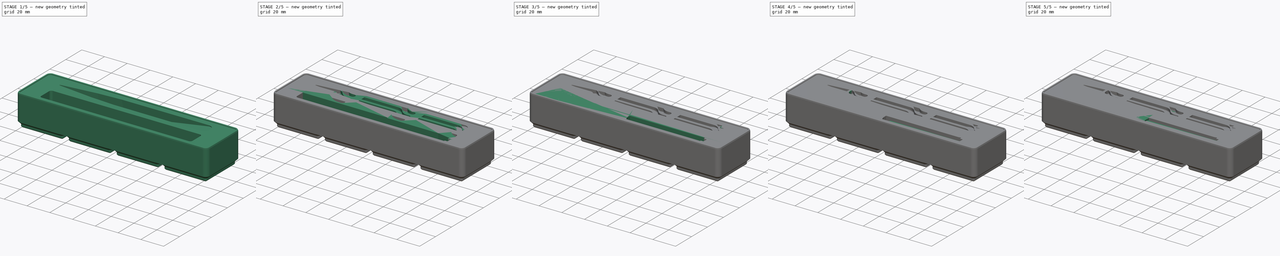
[diagram: build sequence overview — one tinted view per stage of 5, left to right]
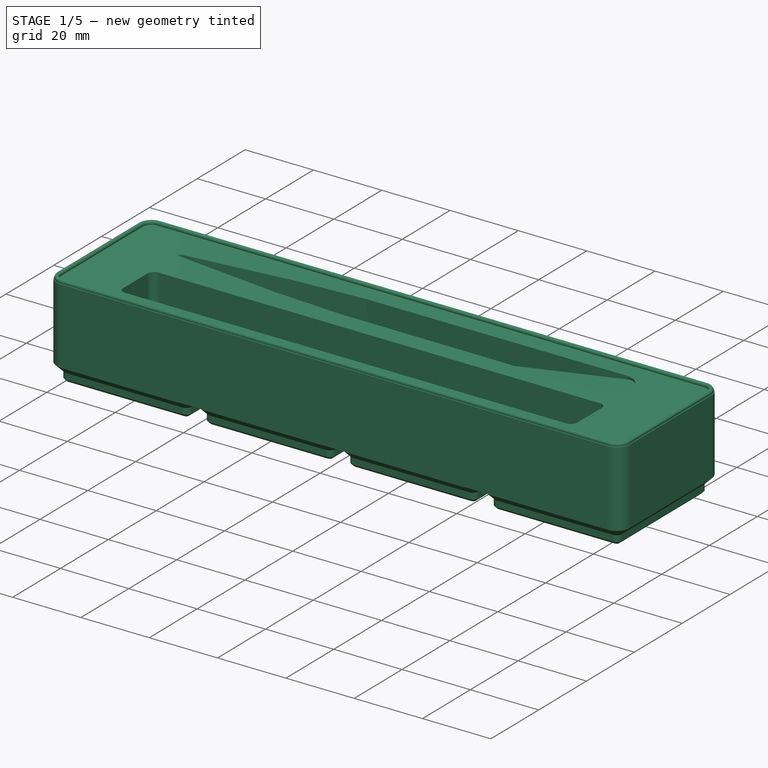
[diagram: stage 1 of 5 — iso view after this stage's code; geometry added in this stage tinted green]
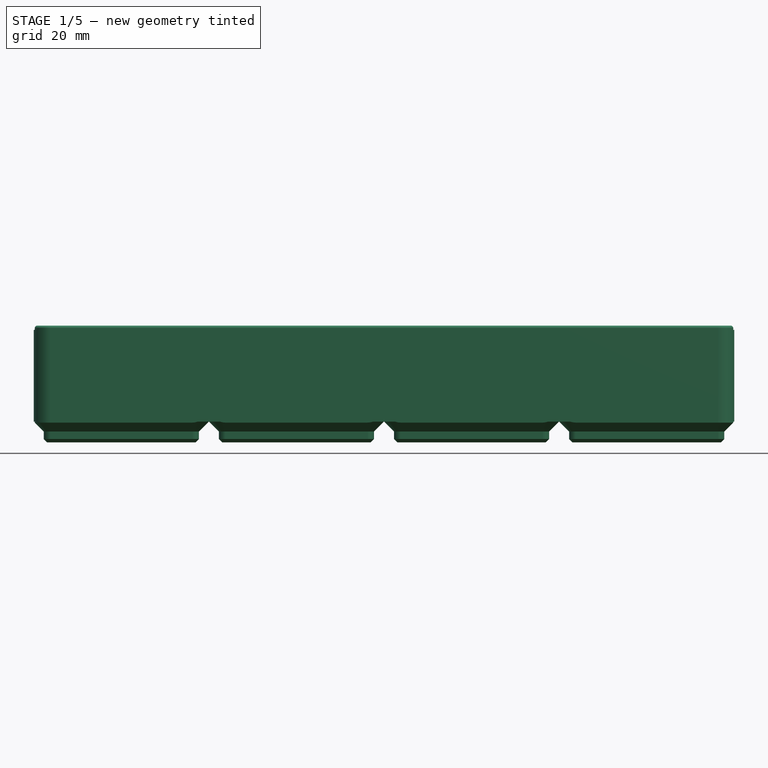
[diagram: stage 1 of 5 — front view after this stage's code; geometry added in this stage tinted green]
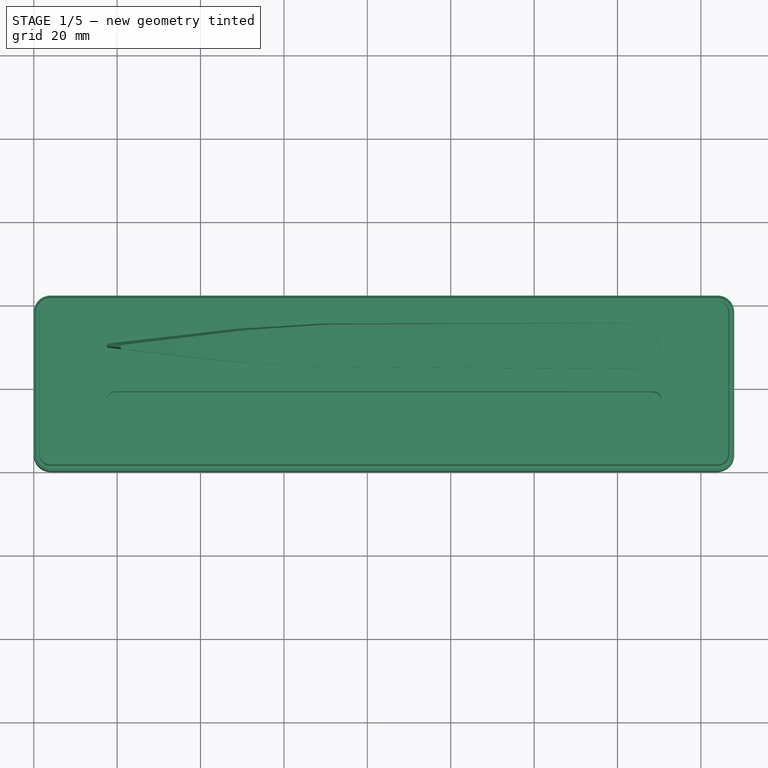
[diagram: stage 1 of 5 — top view after this stage's code; geometry added in this stage tinted green]
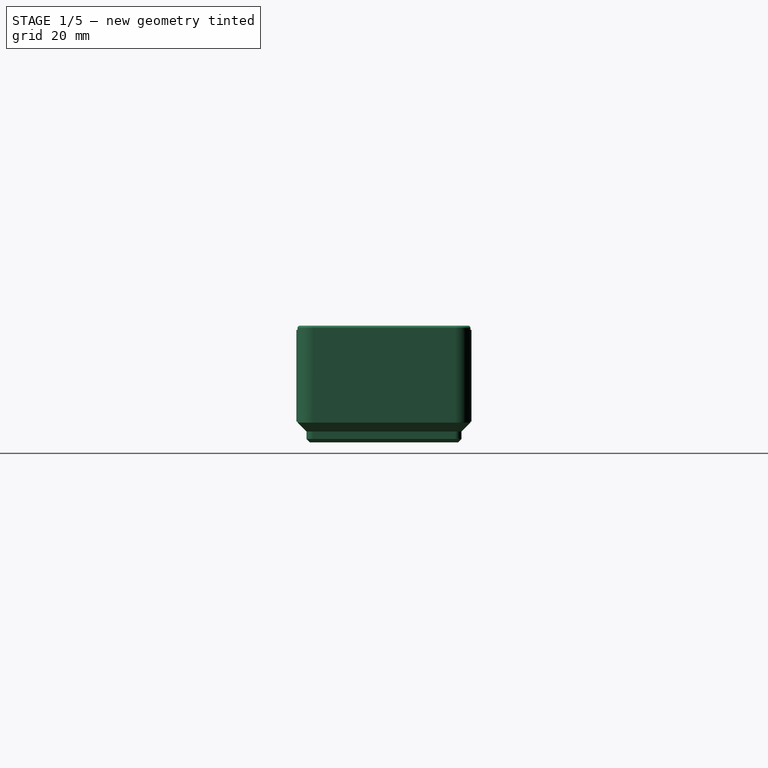
[diagram: stage 1 of 5 — right view after this stage's code; geometry added in this stage tinted green]
FCSTD DOCUMENT  (FreeCAD 0.21R)
Label: MyGridfinity 4x1x4
License: Creative Commons Attribution
LicenseURL: http://creativecommons.org/licenses/by/4.0/
objects: Sketcher::SketchObject×28, PartDesign::Fillet×23, PartDesign::Pocket×19, PartDesign::Body×9, PartDesign::FeatureBase×8, PartDesign::LinearPattern×4, PartDesign::Plane×2, PartDesign::Pad×2, PartDesign::MultiTransform×2, App::FeaturePython×1, PartDesign::AdditivePipe×1, PartDesign::SubtractiveLoft×1, PartDesign::Hole×1, PartDesign::SubShapeBinder×1
note: 148 computed .brp shape members not serialized (recipe doc carries the construction recipe); baked Part::Feature solids carry a one-line shape summary decoded from their .brp

FEATURE [App::FeaturePython] dd  # WARN: FeaturePython — macro-defined, semantics opaque (R4)
  DynamicData = Created with DynamicData (v2.46) workbench. | This is a simple container object built | for holding custom properties.
  ddBase_screw_diameter = 3
  ddBase_screw_hole_depth = 2.6
  ddBottom_chamfer = 0.8
  ddCell_center = 21
  ddClearance = 0.25
  ddColumns = 4
  ddCorner_fillet = 4
  ddFrame_height = 5
  ddFrame_width = 2.4
  ddGrid_size = 42
  ddHeight = 4
  ddMagnet_diameter = 6.5
  ddMagnet_inset = 8
  ddMagnet_thickness = 2.4
  ddRows = 1
  ddSet_screw_holes = true
  ddStorage_height = 28
  ddStorage_height_unit = 7
  ddTotal_length = 42
  ddTotal_width = 168
  ddWall_thickness = 1.2
  expr: ddBase_screw_hole_depth = max(ddSet_screw_holes * (ddFrame_height - ddMagnet_thickness); 1e-06mm)
  expr: ddCell_center = ddGrid_size / 2
  expr: ddStorage_height = max(ddStorage_height_unit * ddHeight; ddFrame_height + ddWall_thickness)
  expr: ddStorage_height_unit = ddGrid_size / 6
  expr: ddTotal_length = ddRows * ddGrid_size
  expr: ddTotal_width = ddColumns * ddGrid_size
FEATURE [Sketcher::SketchObject] Sketch005  label="Sketch_storage_wall_profile"
  AttachmentOffset = pos=(0,0,21) rot=(0,0,1;0rad)
  FullyConstrained = true
  MapMode = 5
  Placement = pos=(21,-4.7e-15,4.7e-15) rot=(0.57735,0.57735,0.57735;2.0944rad)
  Support = -> [YZ_Plane001]
  expr: .AttachmentOffset.Base.z = dd.ddCell_center
  expr: Constraints[16] = dd.ddFrame_height - dd.ddClearance
  expr: Constraints[17] = dd.ddBottom_chamfer
  expr: Constraints[26] = dd.ddWall_thickness
  expr: Constraints[27] = dd.ddWall_thickness
  expr: Constraints[28] = dd.ddStorage_height
  expr: Constraints[47] = dd.ddWall_thickness
  expr: Constraints[6] = dd.ddClearance
  expr: Constraints[7] = dd.ddFrame_width - dd.ddClearance
  sketch-geometry (17):
    g0: LineSegment StartX=0.25 StartY=0 StartZ=0 EndX=0.25 EndY=27.4 EndZ=0
    g1: LineSegment StartX=0.25 StartY=27.4 StartZ=0 EndX=0.85 EndY=27.4 EndZ=0
    g2: LineSegment StartX=0.85 StartY=27.4 StartZ=0 EndX=0.425736 EndY=26.9757 EndZ=0
    g3: LineSegment StartX=0.425736 StartY=26.9757 StartZ=0 EndX=2.15 EndY=25.2515 EndZ=0
    g4: LineSegment StartX=2.15 StartY=25.2515 StartZ=0 EndX=0 EndY=27.4015 EndZ=0
    g5: LineSegment StartX=2.15 StartY=25.2515 StartZ=0 EndX=2.15 EndY=23.4515 EndZ=0
    g6: LineSegment StartX=2.15 StartY=23.4515 StartZ=0 EndX=2.95 EndY=22.6515 EndZ=0
    g7: LineSegment StartX=2.95 StartY=22.6515 StartZ=0 EndX=2.95 EndY=21.4515 EndZ=0
    g8: LineSegment StartX=2.95 StartY=21.4515 StartZ=0 EndX=1.45 EndY=19.9515 EndZ=0
    g9: LineSegment StartX=1.45 StartY=19.9515 StartZ=0 EndX=1.45 EndY=-8.04853 EndZ=0
    g10: LineSegment StartX=1.45 StartY=-8.04853 StartZ=0 EndX=0.25 EndY=-8.04853 EndZ=0
    g11: LineSegment StartX=0.85 StartY=27.4 StartZ=0 EndX=0.85 EndY=28 EndZ=0
    g12: LineSegment StartX=1.45 StartY=19.9515 StartZ=0 EndX=1.45 EndY=28 EndZ=0
    g13: LineSegment StartX=0.85 StartY=28 StartZ=0 EndX=1.45 EndY=28 EndZ=0
    g14: LineSegment StartX=0.25 StartY=-8.04853 StartZ=0 EndX=0.25 EndY=0 EndZ=0
    g15: ArcOfCircle CenterX=0.85 CenterY=27.4 CenterZ=0 NormalX=0 NormalY=0 NormalZ=1 AngleXU=0 Radius=0.6 StartAngle=1.5708 EndAngle=3.14159
    g16: ArcOfCircle CenterX=0.85 CenterY=27.4 CenterZ=0 NormalX=0 NormalY=0 NormalZ=1 AngleXU=0 Radius=0.6 StartAngle=3.92699 EndAngle=7.85398
  constraints (48):
    c: Vertical(g0)
    c: Coincident(g1,g0)
    c: Horizontal(g1)
    c: Coincident(g2,g1)
    c: Coincident(g3,g2)
    c: Perpendicular(g3,g2)
    c: DistanceX(g-1,g0) = 0.25
    c: DistanceX(g-1,g3) = 2.15
    c: Coincident(g4,g3)
    c: PointOnObject(g4,g-2)
    c: PointOnObject(g2,g4)
    c: Angle(g-2,g4) = 0.785398
    c: Coincident(g5,g3)
    c: Vertical(g5)
    c: Coincident(g6,g5)
    c: Parallel(g4,g6)
    c: DistanceY(g6,g4) = 4.75
    c: DistanceX(g5,g6) = 0.8
    c: Coincident(g7,g6)
    c: Vertical(g7)
    c: Coincident(g8,g7)
    c: Coincident(g9,g8)
    c: Vertical(g9)
    c: Coincident(g10,g9)
    c: Horizontal(g10)
    c: Perpendicular(g8,g4)
    c: DistanceY(g7,g6) = 1.2
    c: DistanceX(g0,g9) = 1.2
    c: DistanceY(g-1,g11) = 28
    c: Coincident(g12,g8)
    c: Vertical(g12)
    c: Coincident(g13,g11)
    c: Coincident(g13,g12)
    c: Horizontal(g13)
    c: PointOnObject(g0,g-1)
    c: Coincident(g14,g10)
    c: Coincident(g14,g0)
    c: Vertical(g14)
    c: Equal(g12,g14)
    c: Vertical(g11)
    c: Coincident(g15,g1)
    c: Coincident(g15,g0)
    c: Coincident(g15,g11)
    c: Coincident(g16,g15)
    c: Coincident(g16,g15)
    c: Coincident(g16,g3)
    c: Coincident(g11,g15)
    c: Diameter(g15) = 1.2
FEATURE [Sketcher::SketchObject] Sketch006  label="Sketch_storage_wall_path"
  FullyConstrained = true
  MapMode = 5
  Support = -> [XY_Plane001]
  expr: Constraints[21] = dd.ddCorner_fillet
  expr: Constraints[22] = dd.ddTotal_width
  expr: Constraints[23] = dd.ddTotal_length
  sketch-geometry (10):
    g0: ArcOfCircle CenterX=4 CenterY=4 CenterZ=0 NormalX=0 NormalY=0 NormalZ=1 AngleXU=0 Radius=4 StartAngle=3.14159 EndAngle=4.71239
    g1: LineSegment StartX=0 StartY=4 StartZ=0 EndX=0 EndY=38 EndZ=0
    g2: ArcOfCircle CenterX=4 CenterY=38 CenterZ=0 NormalX=0 NormalY=0 NormalZ=1 AngleXU=0 Radius=4 StartAngle=1.5708 EndAngle=3.14159
    g3: LineSegment StartX=4 StartY=42 StartZ=0 EndX=164 EndY=42 EndZ=0
    g4: ArcOfCircle CenterX=164 CenterY=38 CenterZ=0 NormalX=0 NormalY=0 NormalZ=1 AngleXU=0 Radius=4 StartAngle=0 EndAngle=1.5708
    g5: LineSegment StartX=168 StartY=38 StartZ=0 EndX=168 EndY=4 EndZ=0
    g6: ArcOfCircle CenterX=164 CenterY=4 CenterZ=0 NormalX=0 NormalY=0 NormalZ=1 AngleXU=0 Radius=4 StartAngle=4.71239 EndAngle=6.28319
    g7: LineSegment StartX=164 StartY=0 StartZ=0 EndX=4 EndY=0 EndZ=0
    g8: GeomPoint X=0 Y=0 Z=0
    g9: GeomPoint X=168 Y=42 Z=0
  constraints (24):
    c: Tangent(g0,g1) = 1.5708
    c: Tangent(g1,g2) = 1.5708
    c: Tangent(g2,g3) = 1.5708
    c: Tangent(g3,g4) = 1.5708
    c: Tangent(g4,g5) = 1.5708
    c: Tangent(g5,g6) = 1.5708
    c: Tangent(g6,g7) = 1.5708
    c: Tangent(g7,g0) = 1.5708
    c: Horizontal(g3)
    c: Horizontal(g7)
    c: Vertical(g1)
    c: Vertical(g5)
    c: Equal(g0,g2)
    c: Equal(g2,g4)
    c: Equal(g4,g6)
    c: PointOnObject(g8,g1)
    c: PointOnObject(g8,g7)
    c: PointOnObject(g9,g3)
    c: PointOnObject(g9,g5)
    c: PointOnObject(g8,g-2)
    c: PointOnObject(g0,g-1)
    c: Radius(g0) = 4
    c: DistanceX(g0,g5) = 168
    c: DistanceY(g0,g2) = 42
FEATURE [PartDesign::AdditivePipe] AdditivePipe  label="AdditivePipe_storage_wall"
  AuxilleryCurvelinear = true
  AuxillerySpineTangent = false
  Binormal = (0,0,0)
  Mode = 0
  Placement = pos=(0,0,0) rot=(0.57735,0.57735,0.57735;2.0944rad)
  Profile = -> Sketch005
  Refine = true
  Spine = -> Sketch006
  SpineTangent = false
  Transformation = 0
  Transition = 0
FEATURE [PartDesign::Plane] DatumPlane  label="DatumPlane_frame_height"
  AttachmentOffset = pos=(0,0,5) rot=(0,0,1;0rad)
  Length = 215.743
  MapMode = 5
  Placement = pos=(0,0,5) rot=(0,0,1;0rad)
  ResizeMode = 0
  Support = -> [XY_Plane001]
  Width = 89.7429
  expr: .AttachmentOffset.Base.z = dd.ddFrame_height
FEATURE [Sketcher::SketchObject] Sketch007  label="Sketch_trim_wall_bottom"
  FullyConstrained = true
  MapMode = 5
  Placement = pos=(0,0,5) rot=(0,0,1;0rad)
  Support = -> [DatumPlane]
  expr: Constraints[7] = dd.ddTotal_width + 10mm
  expr: Constraints[8] = dd.ddTotal_length + 10mm
  sketch-geometry (4):
    g0: LineSegment StartX=-5 StartY=-5 StartZ=0 EndX=173 EndY=-5 EndZ=0
    g1: LineSegment StartX=173 StartY=-5 StartZ=0 EndX=173 EndY=47 EndZ=0
    g2: LineSegment StartX=173 StartY=47 StartZ=0 EndX=-5 EndY=47 EndZ=0
    g3: LineSegment StartX=-5 StartY=47 StartZ=0 EndX=-5 EndY=-5 EndZ=0
  constraints (12):
    c: Coincident(g0,g1)
    c: Coincident(g1,g2)
    c: Coincident(g2,g3)
    c: Horizontal(g0)
    c: Horizontal(g2)
    c: Vertical(g1)
    c: Vertical(g3)
    c: DistanceX(g0,g0) = 178
    c: DistanceY(g0,g2) = 52
    c: Coincident(g3,g0)
    c: DistanceX(g0,g-1) = 5
    c: DistanceY(g0,g-1) = 5
FEATURE [PartDesign::Pocket] Pocket  label="Pocket_trim_wall_bottom"
  BaseFeature = -> AdditivePipe
  Direction = (0,0,-1)
  Length = 5
  Length2 = 5
  Placement = pos=(0,0,0) rot=(0.57735,0.57735,0.57735;2.0944rad)
  Profile = -> Sketch007
  ReferenceAxis = -> Sketch007 [N_Axis]
  Refine = true
  Type = 1
FEATURE [Sketcher::SketchObject] Sketch008  label="Sketch_storage_stock"
  FullyConstrained = true
  MapMode = 5
  Support = -> [XY_Plane001]
  expr: Constraints[19] = dd.ddClearance
  expr: Constraints[20] = dd.ddClearance
  expr: Constraints[21] = dd.ddCorner_fillet
  expr: Constraints[22] = dd.ddTotal_width - 2 * dd.ddCorner_fillet
  expr: Constraints[23] = dd.ddTotal_length - 2 * dd.ddCorner_fillet
  sketch-geometry (10):
    g0: ArcOfCircle CenterX=4 CenterY=4 CenterZ=0 NormalX=0 NormalY=0 NormalZ=1 AngleXU=0 Radius=3.75 StartAngle=3.14159 EndAngle=4.71239
    g1: LineSegment StartX=0.25 StartY=4 StartZ=0 EndX=0.25 EndY=38 EndZ=0
    g2: ArcOfCircle CenterX=4 CenterY=38 CenterZ=0 NormalX=0 NormalY=0 NormalZ=1 AngleXU=0 Radius=3.75 StartAngle=1.5708 EndAngle=3.14159
    g3: LineSegment StartX=4 StartY=41.75 StartZ=0 EndX=164 EndY=41.75 EndZ=0
    g4: ArcOfCircle CenterX=164 CenterY=38 CenterZ=0 NormalX=0 NormalY=0 NormalZ=1 AngleXU=0 Radius=3.75 StartAngle=1.1e-15 EndAngle=1.5708
    g5: LineSegment StartX=167.75 StartY=38 StartZ=0 EndX=167.75 EndY=4 EndZ=0
    g6: ArcOfCircle CenterX=164 CenterY=4 CenterZ=0 NormalX=0 NormalY=0 NormalZ=1 AngleXU=0 Radius=3.75 StartAngle=4.71239 EndAngle=6.28319
    g7: LineSegment StartX=164 StartY=0.25 StartZ=0 EndX=4 EndY=0.25 EndZ=0
    g8: GeomPoint X=0.25 Y=0.25 Z=0
    g9: GeomPoint X=167.75 Y=41.75 Z=0
  constraints (24):
    c: Tangent(g0,g1) = 1.5708
    c: Tangent(g1,g2) = 1.5708
    c: Tangent(g2,g3) = 1.5708
    c: Tangent(g3,g4) = 1.5708
    c: Tangent(g4,g5) = 1.5708
    c: Tangent(g5,g6) = 1.5708
    c: Tangent(g6,g7) = 1.5708
    c: Tangent(g7,g0) = 1.5708
    c: Horizontal(g3)
    c: Horizontal(g7)
    c: Vertical(g1)
    c: Vertical(g5)
    c: Equal(g0,g2)
    c: Equal(g2,g4)
    c: Equal(g4,g6)
    c: PointOnObject(g8,g1)
    c: PointOnObject(g8,g7)
    c: PointOnObject(g9,g3)
    c: PointOnObject(g9,g5)
    c: DistanceX(g-1,g0) = 0.25
    c: DistanceY(g-1,g0) = 0.25
    c: DistanceX(g-1,g0) = 4
    c: DistanceX(g2,g4) = 160
    c: DistanceY(g6,g4) = 34
FEATURE [PartDesign::Pad] Pad001  label="Pad_storage_stock"
  BaseFeature = -> Pocket
  Direction = (0,0,1)
  Length = 6.2
  Length2 = 10
  Placement = pos=(0,0,0) rot=(0.57735,0.57735,0.57735;2.0944rad)
  Profile = -> Sketch008
  ReferenceAxis = -> Sketch008 [N_Axis]
  Refine = true
  Type = 0
  expr: Length = dd.ddFrame_height + dd.ddWall_thickness
FEATURE [Sketcher::SketchObject] Sketch009  label="Sketch_storage_cell_cutout_top"
  AttachmentOffset = pos=(0,0,5) rot=(0,0,1;0rad)
  FullyConstrained = true
  MapMode = 5
  Placement = pos=(0,0,5) rot=(0,0,1;0rad)
  Support = -> [XY_Plane001]
  expr: .AttachmentOffset.Base.z = dd.ddFrame_height
  expr: Constraints[19] = dd.ddCorner_fillet - 1e-06mm
  expr: Constraints[20] = dd.ddCorner_fillet
  expr: Constraints[21] = dd.ddCorner_fillet
  expr: Constraints[31] = dd.ddCorner_fillet
  expr: Constraints[32] = dd.ddCorner_fillet
  expr: Constraints[33] = dd.ddGrid_size
  expr: Constraints[34] = dd.ddGrid_size
  sketch-geometry (14):
    g0: ArcOfCircle CenterX=4 CenterY=4 CenterZ=0 NormalX=0 NormalY=0 NormalZ=1 AngleXU=0 Radius=4 StartAngle=3.14159 EndAngle=4.71239
    g1: LineSegment StartX=1e-06 StartY=4 StartZ=0 EndX=1e-06 EndY=38 EndZ=0
    g2: ArcOfCircle CenterX=4 CenterY=38 CenterZ=0 NormalX=0 NormalY=0 NormalZ=1 AngleXU=0 Radius=4 StartAngle=1.5708 EndAngle=3.14159
    g3: LineSegment StartX=4 StartY=42 StartZ=0 EndX=38 EndY=42 EndZ=0
    g4: ArcOfCircle CenterX=38 CenterY=38 CenterZ=0 NormalX=0 NormalY=0 NormalZ=1 AngleXU=0 Radius=4 StartAngle=-9e-16 EndAngle=1.5708
    g5: LineSegment StartX=42 StartY=38 StartZ=0 EndX=42 EndY=4 EndZ=0
    g6: ArcOfCircle CenterX=38 CenterY=4 CenterZ=0 NormalX=0 NormalY=0 NormalZ=1 AngleXU=0 Radius=4 StartAngle=4.71239 EndAngle=6.28319
    g7: LineSegment StartX=38 StartY=1e-06 StartZ=0 EndX=4 EndY=1e-06 EndZ=0
    g8: GeomPoint X=1e-06 Y=1e-06 Z=0
    g9: GeomPoint X=42 Y=42 Z=0
    g10: LineSegment StartX=0 StartY=0 StartZ=0 EndX=42 EndY=0 EndZ=0
    g11: LineSegment StartX=42 StartY=0 StartZ=0 EndX=42 EndY=42 EndZ=0
    g12: LineSegment StartX=42 StartY=42 StartZ=0 EndX=0 EndY=42 EndZ=0
    g13: LineSegment StartX=0 StartY=42 StartZ=0 EndX=0 EndY=0 EndZ=0
  constraints (35):
    c: Tangent(g0,g1) = 1.5708
    c: Tangent(g1,g2) = 1.5708
    c: Tangent(g2,g3) = 1.5708
    c: Tangent(g3,g4) = 1.5708
    c: Tangent(g4,g5) = 1.5708
    c: Tangent(g5,g6) = 1.5708
    c: Tangent(g6,g7) = 1.5708
    c: Tangent(g7,g0) = 1.5708
    c: Horizontal(g3)
    c: Horizontal(g7)
    c: Vertical(g1)
    c: Vertical(g5)
    c: Equal(g0,g2)
    c: Equal(g2,g4)
    c: Equal(g4,g6)
    c: PointOnObject(g8,g1)
    c: PointOnObject(g8,g7)
    c: PointOnObject(g9,g3)
    c: PointOnObject(g9,g5)
    c: Radius(g0) = 4
    c: DistanceX(g-1,g0) = 4
    c: DistanceY(g-1,g0) = 4
    c: Coincident(g10,g11)
    c: Coincident(g11,g12)
    c: Coincident(g12,g13)
    c: Coincident(g13,g10)
    c: Horizontal(g10)
    c: Horizontal(g12)
    c: Vertical(g11)
    c: Vertical(g13)
    c: Coincident(g10,g-1)
    c: DistanceX(g6,g10) = 4
    c: DistanceY(g2,g12) = 4
    c: DistanceX(g10,g10) = 42
    c: DistanceY(g10,g12) = 42
FEATURE [Sketcher::SketchObject] Sketch010  label="Sketch_storage_cell_cutout_top_chamfer"
  AttachmentOffset = pos=(0,0,2.6) rot=(0,0,1;0rad)
  FullyConstrained = true
  MapMode = 5
  Placement = pos=(0,0,2.6) rot=(0,0,1;0rad)
  Support = -> [XY_Plane001]
  expr: .AttachmentOffset.Base.z = dd.ddFrame_height - dd.ddFrame_width
  expr: Constraints[19] = Sketch009.Constraints[19] - dd.ddFrame_width
  expr: Constraints[20] = Sketch009.Constraints[20]
  expr: Constraints[21] = Sketch009.Constraints[21]
  expr: Constraints[31] = Sketch009.Constraints[31]
  expr: Constraints[32] = Sketch009.Constraints[32]
  expr: Constraints[33] = Sketch009.Constraints[33]
  expr: Constraints[34] = Sketch009.Constraints[34]
  sketch-geometry (14):
    g0: ArcOfCircle CenterX=4 CenterY=4 CenterZ=0 NormalX=0 NormalY=0 NormalZ=1 AngleXU=0 Radius=1.6 StartAngle=3.14159 EndAngle=4.71239
    g1: LineSegment StartX=2.4 StartY=4 StartZ=0 EndX=2.4 EndY=38 EndZ=0
    g2: ArcOfCircle CenterX=4 CenterY=38 CenterZ=0 NormalX=0 NormalY=0 NormalZ=1 AngleXU=0 Radius=1.6 StartAngle=1.5708 EndAngle=3.14159
    g3: LineSegment StartX=4 StartY=39.6 StartZ=0 EndX=38 EndY=39.6 EndZ=0
    g4: ArcOfCircle CenterX=38 CenterY=38 CenterZ=0 NormalX=0 NormalY=0 NormalZ=1 AngleXU=0 Radius=1.6 StartAngle=3.81e-14 EndAngle=1.5708
    g5: LineSegment StartX=39.6 StartY=38 StartZ=0 EndX=39.6 EndY=4 EndZ=0
    g6: ArcOfCircle CenterX=38 CenterY=4 CenterZ=0 NormalX=0 NormalY=0 NormalZ=1 AngleXU=0 Radius=1.6 StartAngle=4.71239 EndAngle=6.28319
    g7: LineSegment StartX=38 StartY=2.4 StartZ=0 EndX=4 EndY=2.4 EndZ=0
    g8: GeomPoint X=2.4 Y=2.4 Z=0
    g9: GeomPoint X=39.6 Y=39.6 Z=0
    g10: LineSegment StartX=0 StartY=0 StartZ=0 EndX=42 EndY=0 EndZ=0
    g11: LineSegment StartX=42 StartY=0 StartZ=0 EndX=42 EndY=42 EndZ=0
    g12: LineSegment StartX=42 StartY=42 StartZ=0 EndX=0 EndY=42 EndZ=0
    g13: LineSegment StartX=0 StartY=42 StartZ=0 EndX=0 EndY=0 EndZ=0
  constraints (35):
    c: Tangent(g0,g1) = 1.5708
    c: Tangent(g1,g2) = 1.5708
    c: Tangent(g2,g3) = 1.5708
    c: Tangent(g3,g4) = 1.5708
    c: Tangent(g4,g5) = 1.5708
    c: Tangent(g5,g6) = 1.5708
    c: Tangent(g6,g7) = 1.5708
    c: Tangent(g7,g0) = 1.5708
    c: Horizontal(g3)
    c: Horizontal(g7)
    c: Vertical(g1)
    c: Vertical(g5)
    c: Equal(g0,g2)
    c: Equal(g2,g4)
    c: Equal(g4,g6)
    c: PointOnObject(g8,g1)
    c: PointOnObject(g8,g7)
    c: PointOnObject(g9,g3)
    c: PointOnObject(g9,g5)
    c: Radius(g0) = 1.6
    c: DistanceX(g-1,g0) = 4
    c: DistanceY(g-1,g0) = 4
    c: Coincident(g10,g11)
    c: Coincident(g11,g12)
    c: Coincident(g12,g13)
    c: Coincident(g13,g10)
    c: Horizontal(g10)
    c: Horizontal(g12)
    c: Vertical(g11)
    c: Vertical(g13)
    c: Coincident(g10,g-1)
    c: DistanceX(g6,g10) = 4
    c: DistanceY(g2,g12) = 4
    c: DistanceX(g10,g10) = 42
    c: DistanceY(g10,g12) = 42
FEATURE [Sketcher::SketchObject] Sketch011  label="Sketch_storage_cell_cutout_bottom_chamfer"
  AttachmentOffset = pos=(0,0,0.8) rot=(0,0,1;0rad)
  FullyConstrained = true
  MapMode = 5
  Placement = pos=(0,0,0.8) rot=(0,0,1;0rad)
  Support = -> [XY_Plane001]
  expr: .AttachmentOffset.Base.z = dd.ddBottom_chamfer
  expr: Constraints[19] = Sketch010.Constraints[19]
  expr: Constraints[20] = Sketch010.Constraints[20]
  expr: Constraints[21] = Sketch010.Constraints[21]
  expr: Constraints[31] = Sketch010.Constraints[31]
  expr: Constraints[32] = Sketch010.Constraints[32]
  expr: Constraints[33] = Sketch010.Constraints[33]
  expr: Constraints[34] = Sketch010.Constraints[34]
  sketch-geometry (14):
    g0: ArcOfCircle CenterX=4 CenterY=4 CenterZ=0 NormalX=0 NormalY=0 NormalZ=1 AngleXU=0 Radius=1.6 StartAngle=3.14159 EndAngle=4.71239
    g1: LineSegment StartX=2.4 StartY=4 StartZ=0 EndX=2.4 EndY=38 EndZ=0
    g2: ArcOfCircle CenterX=4 CenterY=38 CenterZ=0 NormalX=0 NormalY=0 NormalZ=1 AngleXU=0 Radius=1.6 StartAngle=1.5708 EndAngle=3.14159
    g3: LineSegment StartX=4 StartY=39.6 StartZ=0 EndX=38 EndY=39.6 EndZ=0
    g4: ArcOfCircle CenterX=38 CenterY=38 CenterZ=0 NormalX=0 NormalY=0 NormalZ=1 AngleXU=0 Radius=1.6 StartAngle=3.81e-14 EndAngle=1.5708
    g5: LineSegment StartX=39.6 StartY=38 StartZ=0 EndX=39.6 EndY=4 EndZ=0
    g6: ArcOfCircle CenterX=38 CenterY=4 CenterZ=0 NormalX=0 NormalY=0 NormalZ=1 AngleXU=0 Radius=1.6 StartAngle=4.71239 EndAngle=6.28319
    g7: LineSegment StartX=38 StartY=2.4 StartZ=0 EndX=4 EndY=2.4 EndZ=0
    g8: GeomPoint X=2.4 Y=2.4 Z=0
    g9: GeomPoint X=39.6 Y=39.6 Z=0
    g10: LineSegment StartX=0 StartY=0 StartZ=0 EndX=42 EndY=0 EndZ=0
    g11: LineSegment StartX=42 StartY=0 StartZ=0 EndX=42 EndY=42 EndZ=0
    g12: LineSegment StartX=42 StartY=42 StartZ=0 EndX=0 EndY=42 EndZ=0
    g13: LineSegment StartX=0 StartY=42 StartZ=0 EndX=0 EndY=0 EndZ=0
  constraints (35):
    c: Tangent(g0,g1) = 1.5708
    c: Tangent(g1,g2) = 1.5708
    c: Tangent(g2,g3) = 1.5708
    c: Tangent(g3,g4) = 1.5708
    c: Tangent(g4,g5) = 1.5708
    c: Tangent(g5,g6) = 1.5708
    c: Tangent(g6,g7) = 1.5708
    c: Tangent(g7,g0) = 1.5708
    c: Horizontal(g3)
    c: Horizontal(g7)
    c: Vertical(g1)
    c: Vertical(g5)
    c: Equal(g0,g2)
    c: Equal(g2,g4)
    c: Equal(g4,g6)
    c: PointOnObject(g8,g1)
    c: PointOnObject(g8,g7)
    c: PointOnObject(g9,g3)
    c: PointOnObject(g9,g5)
    c: Radius(g0) = 1.6
    c: DistanceX(g-1,g0) = 4
    c: DistanceY(g-1,g0) = 4
    c: Coincident(g10,g11)
    c: Coincident(g11,g12)
    c: Coincident(g12,g13)
    c: Coincident(g13,g10)
    c: Horizontal(g10)
    c: Horizontal(g12)
    c: Vertical(g11)
    c: Vertical(g13)
    c: Coincident(g10,g-1)
    c: DistanceX(g6,g10) = 4
    c: DistanceY(g2,g12) = 4
    c: DistanceX(g10,g10) = 42
    c: DistanceY(g10,g12) = 42
FEATURE [Sketcher::SketchObject] Sketch012  label="Sketch_storage_cell_cutout_bottom"
  FullyConstrained = true
  MapMode = 5
  Support = -> [XY_Plane001]
  expr: Constraints[19] = Sketch011.Constraints[19] - dd.ddBottom_chamfer
  expr: Constraints[20] = Sketch011.Constraints[20]
  expr: Constraints[21] = Sketch011.Constraints[21]
  expr: Constraints[31] = Sketch011.Constraints[31]
  expr: Constraints[32] = Sketch011.Constraints[32]
  expr: Constraints[33] = Sketch011.Constraints[33]
  expr: Constraints[34] = Sketch011.Constraints[34]
  sketch-geometry (14):
    g0: ArcOfCircle CenterX=4 CenterY=4 CenterZ=0 NormalX=0 NormalY=0 NormalZ=1 AngleXU=0 Radius=0.799999 StartAngle=3.14159 EndAngle=4.71239
    g1: LineSegment StartX=3.2 StartY=4 StartZ=0 EndX=3.2 EndY=38 EndZ=0
    g2: ArcOfCircle CenterX=4 CenterY=38 CenterZ=0 NormalX=0 NormalY=0 NormalZ=1 AngleXU=0 Radius=0.799999 StartAngle=1.5708 EndAngle=3.14159
    g3: LineSegment StartX=4 StartY=38.8 StartZ=0 EndX=38 EndY=38.8 EndZ=0
    g4: ArcOfCircle CenterX=38 CenterY=38 CenterZ=0 NormalX=0 NormalY=0 NormalZ=1 AngleXU=0 Radius=0.799999 StartAngle=-2.7e-15 EndAngle=1.5708
    g5: LineSegment StartX=38.8 StartY=38 StartZ=0 EndX=38.8 EndY=4 EndZ=0
    g6: ArcOfCircle CenterX=38 CenterY=4 CenterZ=0 NormalX=0 NormalY=0 NormalZ=1 AngleXU=0 Radius=0.799999 StartAngle=4.71239 EndAngle=6.28319
    g7: LineSegment StartX=38 StartY=3.2 StartZ=0 EndX=4 EndY=3.2 EndZ=0
    g8: GeomPoint X=3.2 Y=3.2 Z=0
    g9: GeomPoint X=38.8 Y=38.8 Z=0
    g10: LineSegment StartX=0 StartY=0 StartZ=0 EndX=42 EndY=0 EndZ=0
    g11: LineSegment StartX=42 StartY=0 StartZ=0 EndX=42 EndY=42 EndZ=0
    g12: LineSegment StartX=42 StartY=42 StartZ=0 EndX=0 EndY=42 EndZ=0
    g13: LineSegment StartX=0 StartY=42 StartZ=0 EndX=0 EndY=0 EndZ=0
  constraints (35):
    c: Tangent(g0,g1) = 1.5708
    c: Tangent(g1,g2) = 1.5708
    c: Tangent(g2,g3) = 1.5708
    c: Tangent(g3,g4) = 1.5708
    c: Tangent(g4,g5) = 1.5708
    c: Tangent(g5,g6) = 1.5708
    c: Tangent(g6,g7) = 1.5708
    c: Tangent(g7,g0) = 1.5708
    c: Horizontal(g3)
    c: Horizontal(g7)
    c: Vertical(g1)
    c: Vertical(g5)
    c: Equal(g0,g2)
    c: Equal(g2,g4)
    c: Equal(g4,g6)
    c: PointOnObject(g8,g1)
    c: PointOnObject(g8,g7)
    c: PointOnObject(g9,g3)
    c: PointOnObject(g9,g5)
    c: Radius(g0) = 0.799999
    c: DistanceX(g-1,g0) = 4
    c: DistanceY(g-1,g0) = 4
    c: Coincident(g10,g11)
    c: Coincident(g11,g12)
    c: Coincident(g12,g13)
    c: Coincident(g13,g10)
    c: Horizontal(g10)
    c: Horizontal(g12)
    c: Vertical(g11)
    c: Vertical(g13)
    c: Coincident(g10,g-1)
    c: DistanceX(g6,g10) = 4
    c: DistanceY(g2,g12) = 4
    c: DistanceX(g10,g10) = 42
    c: DistanceY(g10,g12) = 42
FEATURE [PartDesign::SubtractiveLoft] SubtractiveLoft001  label="SubtractiveLoft_storage_cell_cutout"
  BaseFeature = -> Pad001
  Closed = false
  Placement = pos=(0,0,0) rot=(0.57735,0.57735,0.57735;2.0944rad)
  Profile = -> Sketch009
  Refine = true
  Ruled = true
  Sections = -> [Sketch010,Sketch011,Sketch012]
FEATURE [Sketcher::SketchObject] Sketch013  label="Sketch_base_magnets"
  FullyConstrained = true
  MapMode = 5
  Support = -> [XY_Plane001]
  expr: Constraints[21] = dd.ddMagnet_inset
  expr: Constraints[22] = dd.ddGrid_size
  expr: Constraints[23] = dd.ddGrid_size
  expr: Constraints[31] = dd.ddMagnet_diameter
  sketch-geometry (14):
    g0: ArcOfCircle CenterX=8 CenterY=8 CenterZ=0 NormalX=0 NormalY=0 NormalZ=1 AngleXU=0 Radius=8 StartAngle=3.14159 EndAngle=4.71239
    g1: LineSegment StartX=-1.8e-15 StartY=8 StartZ=0 EndX=-1.8e-15 EndY=34 EndZ=0
    g2: ArcOfCircle CenterX=8 CenterY=34 CenterZ=0 NormalX=0 NormalY=0 NormalZ=1 AngleXU=0 Radius=8 StartAngle=1.5708 EndAngle=3.14159
    g3: LineSegment StartX=8 StartY=42 StartZ=0 EndX=34 EndY=42 EndZ=0
    g4: ArcOfCircle CenterX=34 CenterY=34 CenterZ=0 NormalX=0 NormalY=0 NormalZ=1 AngleXU=0 Radius=8 StartAngle=0 EndAngle=1.5708
    g5: LineSegment StartX=42 StartY=34 StartZ=0 EndX=42 EndY=8 EndZ=0
    g6: ArcOfCircle CenterX=34 CenterY=8 CenterZ=0 NormalX=0 NormalY=0 NormalZ=1 AngleXU=0 Radius=8 StartAngle=4.71239 EndAngle=6.28319
    g7: LineSegment StartX=34 StartY=-1.8e-15 StartZ=0 EndX=8 EndY=-1.8e-15 EndZ=0
    g8: GeomPoint X=0 Y=0 Z=0
    g9: GeomPoint X=42 Y=42 Z=0
    g10: Circle CenterX=8 CenterY=34 CenterZ=0 NormalX=0 NormalY=0 NormalZ=1 AngleXU=0 Radius=3.25
    g11: Circle CenterX=34 CenterY=34 CenterZ=0 NormalX=0 NormalY=0 NormalZ=1 AngleXU=0 Radius=3.25
    g12: Circle CenterX=8 CenterY=8 CenterZ=0 NormalX=0 NormalY=0 NormalZ=1 AngleXU=0 Radius=3.25
    g13: Circle CenterX=34 CenterY=8 CenterZ=0 NormalX=0 NormalY=0 NormalZ=1 AngleXU=0 Radius=3.25
  constraints (32):
    c: Tangent(g0,g1) = 1.5708
    c: Tangent(g1,g2) = 1.5708
    c: Tangent(g2,g3) = 1.5708
    c: Tangent(g3,g4) = 1.5708
    c: Tangent(g4,g5) = 1.5708
    c: Tangent(g5,g6) = 1.5708
    c: Tangent(g6,g7) = 1.5708
    c: Tangent(g7,g0) = 1.5708
    c: Horizontal(g3)
    c: Horizontal(g7)
    c: Vertical(g1)
    c: Vertical(g5)
    c: Equal(g0,g2)
    c: Equal(g2,g4)
    c: Equal(g4,g6)
    c: PointOnObject(g8,g1)
    c: PointOnObject(g8,g7)
    c: PointOnObject(g9,g3)
    c: PointOnObject(g9,g5)
    c: PointOnObject(g0,g-2)
    c: PointOnObject(g0,g-1)
    c: DistanceX(g8,g0) = 8
    c: DistanceX(g0,g5) = 42
    c: DistanceY(g0,g2) = 42
    c: Coincident(g10,g2)
    c: Coincident(g11,g4)
    c: Coincident(g12,g0)
    c: Coincident(g13,g6)
    c: Equal(g12,g10)
    c: Equal(g12,g11)
    c: Equal(g12,g13)
    c: Diameter(g12) = 6.5
FEATURE [PartDesign::Hole] Hole  label="Hole_base_magnets"
  BaseFeature = -> SubtractiveLoft001
  CustomThreadClearance = 0
  Depth = 2.4
  DepthType = 0
  Diameter = 6.5
  DrillForDepth = false
  DrillPoint = 0
  DrillPointAngle = 118
  HoleCutCountersinkAngle = 90
  HoleCutCustomValues = false
  HoleCutDepth = 0
  HoleCutDiameter = 0
  HoleCutType = 0
  ModelThread = false
  Placement = pos=(0,0,0) rot=(0.57735,0.57735,0.57735;2.0944rad)
  Profile = -> Sketch013
  Refine = true
  Reversed = true
  Tapered = false
  TaperedAngle = 90
  ThreadClass = 0
  ThreadDepth = 2.4
  ThreadDepthType = 0
  ThreadDirection = 0
  ThreadFit = 0
  ThreadSize = 0
  ThreadType = 0
  Threaded = false
  UseCustomThreadClearance = false
  expr: Depth = dd.ddMagnet_thickness
  expr: Diameter = dd.ddMagnet_diameter
FEATURE [Sketcher::SketchObject] Sketch014  label="Sketch_base_screw_holes"
  AttachmentOffset = pos=(0,0,2.4) rot=(0,0,1;0rad)
  FullyConstrained = true
  MapMode = 5
  Placement = pos=(0,0,2.4) rot=(0,0,1;0rad)
  Support = -> [XY_Plane001]
  expr: .AttachmentOffset.Base.z = dd.ddMagnet_thickness
  expr: Constraints[21] = Sketch013.Constraints[21]
  expr: Constraints[22] = Sketch013.Constraints[22]
  expr: Constraints[23] = Sketch013.Constraints[23]
  expr: Constraints[31] = dd.ddBase_screw_diameter
  sketch-geometry (14):
    g0: ArcOfCircle CenterX=8 CenterY=8 CenterZ=0 NormalX=0 NormalY=0 NormalZ=1 AngleXU=0 Radius=8 StartAngle=3.14159 EndAngle=4.71239
    g1: LineSegment StartX=-1.8e-15 StartY=8 StartZ=0 EndX=-1.8e-15 EndY=34 EndZ=0
    g2: ArcOfCircle CenterX=8 CenterY=34 CenterZ=0 NormalX=0 NormalY=0 NormalZ=1 AngleXU=0 Radius=8 StartAngle=1.5708 EndAngle=3.14159
    g3: LineSegment StartX=8 StartY=42 StartZ=0 EndX=34 EndY=42 EndZ=0
    g4: ArcOfCircle CenterX=34 CenterY=34 CenterZ=0 NormalX=0 NormalY=0 NormalZ=1 AngleXU=0 Radius=8 StartAngle=0 EndAngle=1.5708
    g5: LineSegment StartX=42 StartY=34 StartZ=0 EndX=42 EndY=8 EndZ=0
    g6: ArcOfCircle CenterX=34 CenterY=8 CenterZ=0 NormalX=0 NormalY=0 NormalZ=1 AngleXU=0 Radius=8 StartAngle=4.71239 EndAngle=6.28319
    g7: LineSegment StartX=34 StartY=-1.8e-15 StartZ=0 EndX=8 EndY=-1.8e-15 EndZ=0
    g8: GeomPoint X=0 Y=0 Z=0
    g9: GeomPoint X=42 Y=42 Z=0
    g10: Circle CenterX=8 CenterY=34 CenterZ=0 NormalX=0 NormalY=0 NormalZ=1 AngleXU=0 Radius=1.5
    g11: Circle CenterX=34 CenterY=34 CenterZ=0 NormalX=0 NormalY=0 NormalZ=1 AngleXU=0 Radius=1.5
    g12: Circle CenterX=8 CenterY=8 CenterZ=0 NormalX=0 NormalY=0 NormalZ=1 AngleXU=0 Radius=1.5
    g13: Circle CenterX=34 CenterY=8 CenterZ=0 NormalX=0 NormalY=0 NormalZ=1 AngleXU=0 Radius=1.5
  constraints (32):
    c: Tangent(g0,g1) = 1.5708
    c: Tangent(g1,g2) = 1.5708
    c: Tangent(g2,g3) = 1.5708
    c: Tangent(g3,g4) = 1.5708
    c: Tangent(g4,g5) = 1.5708
    c: Tangent(g5,g6) = 1.5708
    c: Tangent(g6,g7) = 1.5708
    c: Tangent(g7,g0) = 1.5708
    c: Horizontal(g3)
    c: Horizontal(g7)
    c: Vertical(g1)
    c: Vertical(g5)
    c: Equal(g0,g2)
    c: Equal(g2,g4)
    c: Equal(g4,g6)
    c: PointOnObject(g8,g1)
    c: PointOnObject(g8,g7)
    c: PointOnObject(g9,g3)
    c: PointOnObject(g9,g5)
    c: PointOnObject(g0,g-2)
    c: PointOnObject(g0,g-1)
    c: DistanceX(g8,g0) = 8
    c: DistanceX(g0,g5) = 42
    c: DistanceY(g0,g2) = 42
    c: Coincident(g10,g2)
    c: Coincident(g11,g4)
    c: Coincident(g12,g0)
    c: Coincident(g13,g6)
    c: Equal(g12,g10)
    c: Equal(g12,g11)
    c: Equal(g12,g13)
    c: Diameter(g12) = 3
FEATURE [PartDesign::LinearPattern] LinearPattern002  label="LinearPattern_storage_grid_x"
  Direction = -> X_Axis001
  Length = 126
  Occurrences = 4
  Placement = pos=(0,0,0) rot=(0.57735,0.57735,0.57735;2.0944rad)
  Refine = true
  expr: Length = max(dd.ddTotal_width - dd.ddGrid_size; 1e-06mm)
  expr: Occurrences = max(dd.ddColumns; 2)
FEATURE [PartDesign::LinearPattern] LinearPattern003  label="LinearPattern_storage_grid_y"
  Direction = -> Y_Axis001
  Length = 42
  Occurrences = 1
  Placement = pos=(0,0,0) rot=(0.57735,0.57735,0.57735;2.0944rad)
  Refine = true
  expr: Length = max(dd.ddTotal_length - dd.ddGrid_size; dd.ddGrid_size)
  expr: Occurrences = dd.ddRows
FEATURE [PartDesign::MultiTransform] MultiTransform001  label="MultiTransform_storage_grid"
  BaseFeature = -> Hole
  Originals = -> [SubtractiveLoft001,Hole]
  Placement = pos=(0,0,0) rot=(0.57735,0.57735,0.57735;2.0944rad)
  Refine = true
  Transformations = -> [LinearPattern002,LinearPattern003]
FEATURE [Sketcher::SketchObject] Sketch
  AttachmentOffset = pos=(0,0,23) rot=(0,0,1;0rad)
  FullyConstrained = false
  MapMode = 5
  Placement = pos=(0,0,23) rot=(0,0,1;0rad)
  Support = -> [XY_Plane]
  sketch-geometry (8):
    g0: ArcOfCircle CenterX=12 CenterY=29.2866 CenterZ=0 NormalX=0 NormalY=0 NormalZ=1 AngleXU=0 Radius=6 StartAngle=1.5708 EndAngle=4.71239
    g1: ArcOfCircle CenterX=156 CenterY=29.2866 CenterZ=0 NormalX=0 NormalY=0 NormalZ=1 AngleXU=0 Radius=6 StartAngle=4.71239 EndAngle=7.85398
    g2: LineSegment StartX=12 StartY=23.2866 StartZ=0 EndX=156 EndY=23.2866 EndZ=0
    g3: LineSegment StartX=156 StartY=35.2866 StartZ=0 EndX=12 EndY=35.2866 EndZ=0
    g4: ArcOfCircle CenterX=12 CenterY=13.2866 CenterZ=0 NormalX=0 NormalY=0 NormalZ=1 AngleXU=0 Radius=6 StartAngle=1.5708 EndAngle=4.71239
    g5: ArcOfCircle CenterX=156 CenterY=13.2866 CenterZ=0 NormalX=0 NormalY=0 NormalZ=1 AngleXU=0 Radius=6 StartAngle=4.71239 EndAngle=7.85398
    g6: LineSegment StartX=12 StartY=7.28662 StartZ=0 EndX=156 EndY=7.28662 EndZ=0
    g7: LineSegment StartX=156 StartY=19.2866 StartZ=0 EndX=12 EndY=19.2866 EndZ=0
  constraints (19):
    c: Tangent(g0,g2) = -1.5708
    c: Tangent(g2,g1) = -1.5708
    c: Tangent(g1,g3) = -1.5708
    c: Tangent(g3,g0) = -1.5708
    c: Equal(g0,g1)
    c: Horizontal(g2)
    c: Radius(g1) = 6
    c: Tangent(g4,g6) = -1.5708
    c: Tangent(g6,g5) = -1.5708
    c: Tangent(g5,g7) = -1.5708
    c: Tangent(g7,g4) = -1.5708
    c: Equal(g4,g5)
    c: Horizontal(g6)
    c: Radius(g5) = 6
    c: Vertical(g5,g1)
    c: Vertical(g0,g4)
    c: DistanceX(g-1,g4) = 12
    c: DistanceX(g4,g5) = 144
    c: DistanceY(g5,g1) = 16
FEATURE [Sketcher::SketchObject] Sketch015
  AttachmentOffset = pos=(0,0,23) rot=(0,0,1;0rad)
  FullyConstrained = false
  MapMode = 5
  Placement = pos=(0,0,23) rot=(0,0,1;0rad)
  Support = -> [XY_Plane]
  sketch-geometry (4):
    g0: ArcOfCircle CenterX=84 CenterY=33.2012 CenterZ=0 NormalX=0 NormalY=0 NormalZ=1 AngleXU=0 Radius=6 StartAngle=-9e-16 EndAngle=3.14159
    g1: ArcOfCircle CenterX=84 CenterY=8.20124 CenterZ=0 NormalX=0 NormalY=0 NormalZ=1 AngleXU=0 Radius=6 StartAngle=3.14159 EndAngle=6.28319
    g2: LineSegment StartX=78 StartY=33.2012 StartZ=0 EndX=78 EndY=8.20124 EndZ=0
    g3: LineSegment StartX=90 StartY=8.20124 StartZ=0 EndX=90 EndY=33.2012 EndZ=0
  constraints (9):
    c: Tangent(g0,g2) = -1.5708
    c: Tangent(g2,g1) = -1.5708
    c: Tangent(g1,g3) = -1.5708
    c: Tangent(g3,g0) = -1.5708
    c: Equal(g0,g1)
    c: Vertical(g2)
    c: DistanceY(g1,g0) = 25
    c: DistanceX(g-1,g1) = 84
    c: Radius(g0) = 6
FEATURE [PartDesign::SubShapeBinder] Binder
  BindCopyOnChange = 0
  BindMode = 0
  ClaimChildren = false
  Context = -> Body001 [Binder.]
  Fuse = false
  MakeFace = true
  OffsetFill = false
  OffsetIntersection = false
  OffsetJoinType = 0
  OffsetOpenResult = false
  PartialLoad = false
  Placement = pos=(0,0,4.99) rot=(0,0,1;0rad)
  Relative = false
  Support = -> [AdditivePipe[Sketch006.]]
  _Version = 2
FEATURE [PartDesign::Pad] Pad
  BaseFeature = -> MultiTransform001
  Direction = (0,0,1)
  Length = 22
  Length2 = 10
  Placement = pos=(0,0,0) rot=(0.57735,0.57735,0.57735;2.0944rad)
  Profile = -> Binder
  Type = 0
  expr: Length = dd.ddStorage_height - 6mm
FEATURE [PartDesign::Body] Body008  label="Deburring tool holder"
  BaseFeature = -> Pad
  Group = -> [Clone007,Pocket020,Sketch034,Sketch035,Pocket021,Sketch036,Pocket022,MultiTransform,LinearPattern,LinearPattern004,Fillet016,Fillet017,Fillet018,Fillet019,Fillet020,Fillet021,Fillet022,Fillet023,Fillet024,Fillet025]
  Origin = -> Origin008
  Tip = -> Fillet025
FEATURE [PartDesign::FeatureBase] Clone008
  BaseFeature = -> Pad
  Placement = pos=(0,0,0) rot=(0.57735,0.57735,0.57735;2.0944rad)
FEATURE [Sketcher::SketchObject] Sketch038  label="Meter sketch"
  AttachmentOffset = pos=(0,0,12) rot=(0,0,1;0rad)
  FullyConstrained = true
  MapMode = 5
  Placement = pos=(0,0,15) rot=(0,0,1;0rad)
  sketch-geometry (10):
    g0: ArcOfCircle CenterX=19.5 CenterY=17 CenterZ=0 NormalX=0 NormalY=0 NormalZ=1 AngleXU=0 Radius=2 StartAngle=1.5708 EndAngle=3.14159
    g1: LineSegment StartX=19.5 StartY=19 StartZ=0 EndX=148.5 EndY=19 EndZ=0
    g2: ArcOfCircle CenterX=148.5 CenterY=17 CenterZ=0 NormalX=0 NormalY=0 NormalZ=1 AngleXU=0 Radius=2 StartAngle=1e-15 EndAngle=1.5708
    g3: LineSegment StartX=150.5 StartY=17 StartZ=0 EndX=150.5 EndY=7 EndZ=0
    g4: ArcOfCircle CenterX=148.5 CenterY=7 CenterZ=0 NormalX=0 NormalY=0 NormalZ=1 AngleXU=0 Radius=2 StartAngle=4.71239 EndAngle=6.28319
    g5: LineSegment StartX=148.5 StartY=5 StartZ=0 EndX=19.5 EndY=5 EndZ=0
    g6: ArcOfCircle CenterX=19.5 CenterY=7 CenterZ=0 NormalX=0 NormalY=0 NormalZ=1 AngleXU=0 Radius=2 StartAngle=3.14159 EndAngle=4.71239
    g7: LineSegment StartX=17.5 StartY=7 StartZ=0 EndX=17.5 EndY=17 EndZ=0
    g8: GeomPoint X=17.5 Y=19 Z=0
    g9: GeomPoint X=150.5 Y=5 Z=0
  constraints (24):
    c: Tangent(g0,g1) = 1.5708
    c: Tangent(g1,g2) = 1.5708
    c: Tangent(g2,g3) = 1.5708
    c: Tangent(g3,g4) = 1.5708
    c: Tangent(g4,g5) = 1.5708
    c: Tangent(g5,g6) = 1.5708
    c: Tangent(g6,g7) = 1.5708
    c: Tangent(g7,g0) = 1.5708
    c: Horizontal(g1)
    c: Horizontal(g5)
    c: Vertical(g3)
    c: Vertical(g7)
    c: Equal(g0,g2)
    c: Equal(g2,g4)
    c: Equal(g4,g6)
    c: PointOnObject(g8,g1)
    c: PointOnObject(g8,g7)
    c: PointOnObject(g9,g3)
    c: PointOnObject(g9,g5)
    c: DistanceX(g6,g3) = 133
    c: DistanceY(g5,g0) = 14
    c: Radius(g2) = 2
    c: DistanceX(g-1,g6) = 17.5
    c: DistanceY(g-1,g5) = 5
FEATURE [PartDesign::Pocket] Pocket023
  BaseFeature = -> Clone008
  Direction = (0,0,-1)
  Length = 5
  Length2 = 5
  Placement = pos=(0,0,0) rot=(0.57735,0.57735,0.57735;2.0944rad)
  Profile = -> Sketch038
  ReferenceAxis = -> Sketch038 [N_Axis]
  Reversed = true
  Type = 1
FEATURE [PartDesign::Plane] DatumPlane001
  AttachmentOffset = pos=(0,0,0) rot=(0,-1,0;0.15708rad)
  Length = 67.9025
  MapMode = 5
  Placement = pos=(0,0,0) rot=(0,-1,0;0.15708rad)
  ResizeMode = 0
  Support = -> [XY_Plane008]
  Width = 60.6964
FEATURE [Sketcher::SketchObject] Sketch039  label="Tweezer sketch"
  AttachmentOffset = pos=(0,0,3) rot=(0,0,1;0rad)
  FullyConstrained = true
  MapMode = 5
  Placement = pos=(-0.469303,0,2.96307) rot=(0,-1,0;0.15708rad)
  Support = -> [DatumPlane001]
  sketch-geometry (9):
    g0: LineSegment StartX=22 StartY=30.5 StartZ=0 EndX=52 EndY=34 EndZ=0
    g1: LineSegment StartX=22 StartY=29.5 StartZ=0 EndX=52 EndY=26 EndZ=0
    g2: ArcOfCircle CenterX=147 CenterY=30 CenterZ=0 NormalX=0 NormalY=0 NormalZ=1 AngleXU=0 Radius=5.5 StartAngle=4.71239 EndAngle=7.85398
    g3: ArcOfCircle CenterX=22 CenterY=30 CenterZ=0 NormalX=0 NormalY=0 NormalZ=1 AngleXU=0 Radius=0.5 StartAngle=1.5708 EndAngle=4.71239
    g4: LineSegment StartX=22 StartY=30 StartZ=0 EndX=147 EndY=30 EndZ=0
    g5: LineSegment StartX=52 StartY=34 StartZ=0 EndX=72 EndY=35.25 EndZ=0
    g6: LineSegment StartX=72 StartY=35.25 StartZ=0 EndX=147 EndY=35.5 EndZ=0
    g7: LineSegment StartX=147 StartY=24.5 StartZ=0 EndX=72 EndY=24.75 EndZ=0
    g8: LineSegment StartX=72 StartY=24.75 StartZ=0 EndX=52 EndY=26 EndZ=0
  constraints (25):
    c: Coincident(g4,g3)
    c: Coincident(g4,g2)
    c: Symmetric(g1,g0,g4)
    c: Radius(g2) = 5.5
    c: DistanceY(g1,g0) = 8
    c: Coincident(g5,g0)
    c: Coincident(g6,g5)
    c: Coincident(g6,g2)
    c: Coincident(g8,g7)
    c: Coincident(g8,g1)
    c: Horizontal(g4)
    c: Symmetric(g7,g5,g4)
    c: Coincident(g7,g2)
    c: DistanceY(g7,g5) = 10.5
    c: DistanceX(g3,g1) = 30
    c: DistanceX(g3,g7) = 50
    c: DistanceX(g3,g2) = 125
    c: Vertical(g2,g2)
    c: Vertical(g2,g2)
    c: Coincident(g1,g3)
    c: Coincident(g0,g3)
    c: DistanceY(g1,g0) = 1
    c: Symmetric(g0,g1,g3)
    c: Vertical(g0,g1)
    c: DistanceY(g-1,g3) = 30
FEATURE [PartDesign::Pocket] Pocket024
  BaseFeature = -> Pocket023
  Direction = (0.156434,0,-0.987688)
  Length = 5
  Length2 = 5
  Placement = pos=(0,0,0) rot=(0.57735,0.57735,0.57735;2.0944rad)
  Profile = -> Sketch039
  ReferenceAxis = -> Sketch039 [N_Axis]
  Reversed = true
  Type = 1
FEATURE [PartDesign::Fillet] Fillet026
  Base = -> Pocket024 [Face151]
  BaseFeature = -> Pocket024
  Placement = pos=(0,0,0) rot=(0.57735,0.57735,0.57735;2.0944rad)
  Radius = 0.05
  SupportTransform = false
  UseAllEdges = false
FEATURE [PartDesign::Body] Body009  label="Meter and tweezer holder"
  BaseFeature = -> Pad
  Group = -> [Clone008,Sketch038,Sketch039,Pocket023,Pocket024,DatumPlane001,Fillet026]
  Origin = -> Origin009
  Tip = -> Fillet026
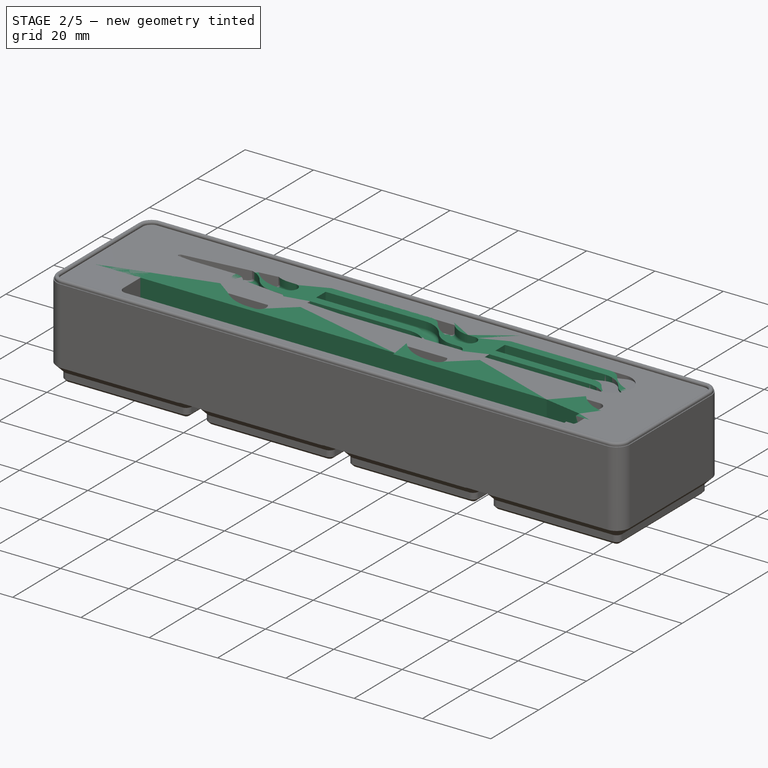
[diagram: stage 2 of 5 — iso view after this stage's code; geometry added in this stage tinted green]
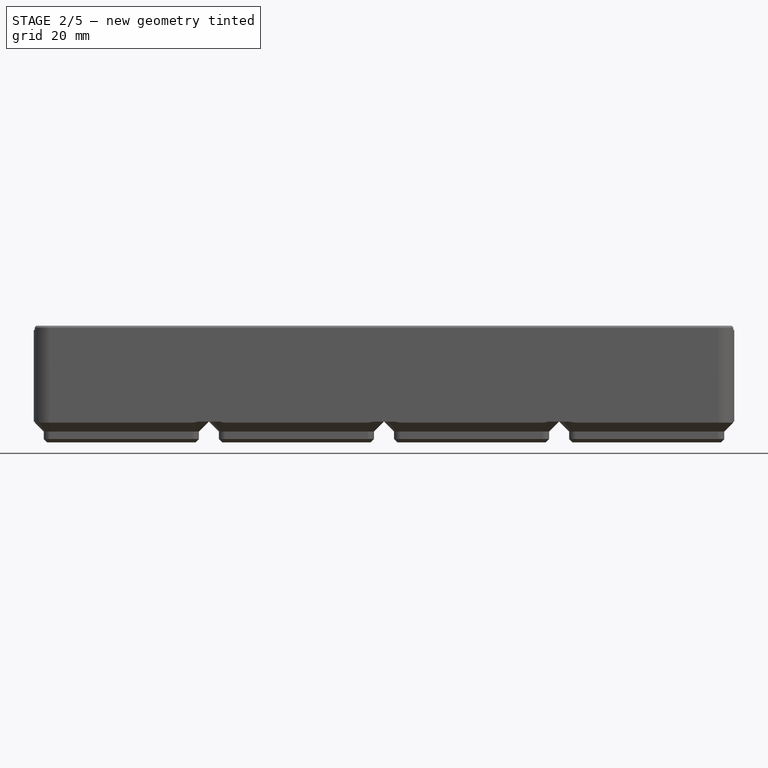
[diagram: stage 2 of 5 — front view after this stage's code; geometry added in this stage tinted green]
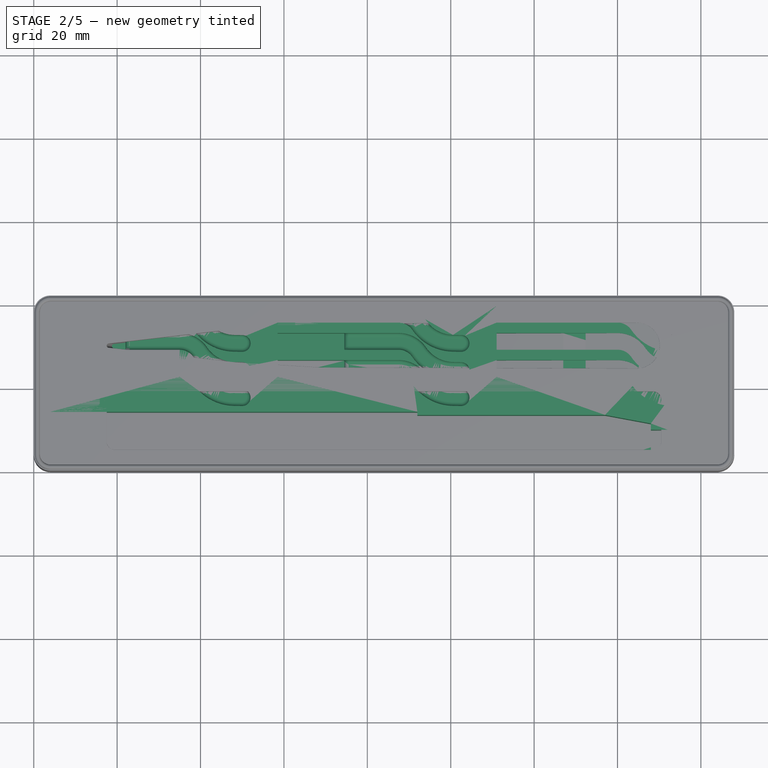
[diagram: stage 2 of 5 — top view after this stage's code; geometry added in this stage tinted green]
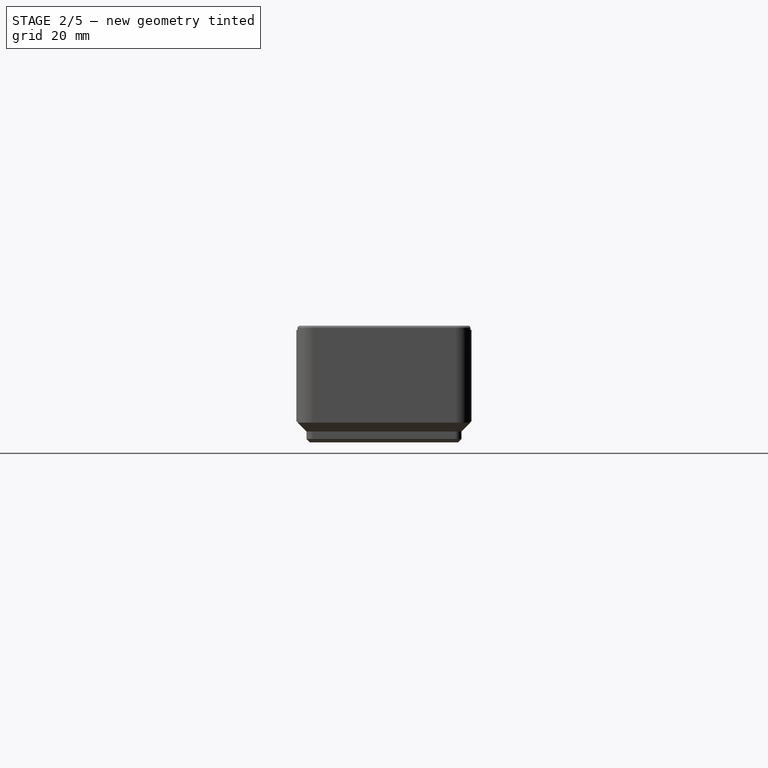
[diagram: stage 2 of 5 — right view after this stage's code; geometry added in this stage tinted green]
FEATURE [PartDesign::Body] Body007  label="Cutter holder"
  BaseFeature = -> Pad
  Group = -> [Clone006,Sketch030,Pocket016,Pocket018,Fillet014,Fillet015,Sketch032]
  Origin = -> Origin007
  Tip = -> Fillet015
FEATURE [PartDesign::FeatureBase] Clone007
  BaseFeature = -> Pad
  Placement = pos=(0,0,0) rot=(0.57735,0.57735,0.57735;2.0944rad)
FEATURE [Sketcher::SketchObject] Sketch034  label="Deburring tool sketch"
  AttachmentOffset = pos=(0,0,15) rot=(0,0,1;0rad)
  FullyConstrained = true
  MapMode = 5
  Placement = pos=(0,0,15) rot=(0,0,1;0rad)
  Support = -> [XY_Plane008]
  sketch-geometry (20):
    g0: LineSegment StartX=4 StartY=1.5 StartZ=0 EndX=92 EndY=1.5 EndZ=0
    g1: LineSegment StartX=92 StartY=14.1 StartZ=0 EndX=4 EndY=14.1 EndZ=0
    g2: LineSegment StartX=2 StartY=3.5 StartZ=0 EndX=2 EndY=12.1 EndZ=0
    g3: ArcOfCircle CenterX=4 CenterY=12.1 CenterZ=0 NormalX=0 NormalY=0 NormalZ=1 AngleXU=0 Radius=2 StartAngle=1.5708 EndAngle=3.14159
    g4: ArcOfCircle CenterX=4 CenterY=3.5 CenterZ=0 NormalX=0 NormalY=0 NormalZ=1 AngleXU=0 Radius=2 StartAngle=3.14159 EndAngle=4.71239
    g5: LineSegment StartX=92 StartY=14.1 StartZ=0 EndX=92 EndY=13.35 EndZ=0
    g6: LineSegment StartX=92 StartY=13.35 StartZ=0 EndX=137 EndY=13.35 EndZ=0
    g7: LineSegment StartX=92 StartY=1.5 StartZ=0 EndX=92 EndY=2.25 EndZ=0
    g8: LineSegment StartX=92 StartY=2.25 StartZ=0 EndX=137 EndY=2.25 EndZ=0
    g9: LineSegment StartX=165 StartY=14.3 StartZ=0 EndX=165 EndY=1.3 EndZ=0
    g10: LineSegment StartX=137 StartY=2.25 StartZ=0 EndX=148 EndY=4.3 EndZ=0
    g11: LineSegment StartX=137 StartY=13.35 StartZ=0 EndX=148 EndY=11.3 EndZ=0
    g12: LineSegment StartX=152 StartY=9.8 StartZ=0 EndX=165 EndY=14.3 EndZ=0
    g13: LineSegment StartX=152 StartY=5.79999 StartZ=0 EndX=165 EndY=1.3 EndZ=0
    g14: LineSegment StartX=148 StartY=11.3 StartZ=0 EndX=148 EndY=9.8 EndZ=0
    g15: LineSegment StartX=148 StartY=9.8 StartZ=0 EndX=152 EndY=9.8 EndZ=0
    g16: LineSegment StartX=148 StartY=4.3 StartZ=0 EndX=148 EndY=5.8 EndZ=0
    g17: LineSegment StartX=148 StartY=5.8 StartZ=0 EndX=152 EndY=5.79999 EndZ=0
    g18: LineSegment StartX=152 StartY=5.79999 StartZ=0 EndX=152 EndY=9.8 EndZ=0
    g19: LineSegment StartX=148 StartY=9.8 StartZ=0 EndX=148 EndY=5.8 EndZ=0
  constraints (57):
    c: Horizontal(g0)
    c: Vertical(g2)
    c: Horizontal(g1)
    c: Tangent(g1,g3) = -1.5708
    c: Tangent(g2,g3) = 1.5708
    c: Tangent(g0,g4) = -1.5708
    c: Tangent(g2,g4) = 1.5708
    c: Equal(g3,g4)
    c: DistanceX(g-1,g2) = 2
    c: DistanceY(g-1,g0) = 1.5
    c: Radius(g3) = 2
    c: DistanceY(g0,g1) = 12.6
    c: Vertical(g0,g1)
    c: Coincident(g5,g1)
    c: Coincident(g6,g5)
    c: Horizontal(g6)
    c: Coincident(g7,g0)
    c: Vertical(g7)
    c: Coincident(g8,g7)
    c: Horizontal(g8)
    c: DistanceX(g2,g0) = 90
    c: Vertical(g9)
    c: Vertical(g5)
    c: Equal(g5,g7)
    c: DistanceX(g2,g9) = 163
    c: Equal(g6,g8)
    c: DistanceY(g5,g5) = 0.75
    c: Coincident(g10,g8)
    c: Coincident(g11,g6)
    c: DistanceY(g10,g11) = 7
    c: Vertical(g10,g11)
    c: DistanceX(g2,g10) = 146
    c: DistanceX(g2,g8) = 135
    c: Equal(g10,g11)
    c: Coincident(g12,g9)
    c: Coincident(g13,g9)
    c: Coincident(g14,g11)
    c: Vertical(g14)
    c: Coincident(g15,g14)
    c: Coincident(g15,g12)
    c: Coincident(g16,g10)
    c: Vertical(g16)
    c: Coincident(g17,g16)
    c: Coincident(g17,g13)
    c: Equal(g16,g14)
    c: DistanceY(g16,g14) = 4
    c: Vertical(g12,g13)
    c: Equal(g15,g17)
    c: Coincident(g18,g13)
    c: PointOnObject(g18,g15)
    c: Vertical(g18)
    c: Coincident(g19,g14)
    c: Coincident(g19,g16)
    c: DistanceX(g17,g17) = 4
    c: Horizontal(g15)
    c: DistanceY(g9,g9) = 13
    c: Equal(g12,g13)
FEATURE [PartDesign::Pocket] Pocket020
  BaseFeature = -> Clone007
  Direction = (0,0,-1)
  Length = 5
  Length2 = 5
  Placement = pos=(0,0,0) rot=(0.57735,0.57735,0.57735;2.0944rad)
  Profile = -> Sketch034
  ReferenceAxis = -> Sketch034 [N_Axis]
  Reversed = true
  Type = 1
FEATURE [Sketcher::SketchObject] Sketch035
  AttachmentOffset = pos=(0,0,24) rot=(0,0,1;0rad)
  FullyConstrained = true
  MapMode = 5
  Placement = pos=(0,0,24) rot=(0,0,1;0rad)
  Support = -> [XY_Plane008]
  sketch-geometry (10):
    g0: LineSegment StartX=6 StartY=39.5 StartZ=0 EndX=35 EndY=39.5 EndZ=0
    g1: ArcOfCircle CenterX=35 CenterY=31.5 CenterZ=0 NormalX=0 NormalY=0 NormalZ=1 AngleXU=0 Radius=8 StartAngle=0.600289 EndAngle=1.5708
    g2: ArcOfCircle CenterX=48.2028 CenterY=40.5381 CenterZ=0 NormalX=0 NormalY=0 NormalZ=1 AngleXU=0 Radius=8 StartAngle=3.74188 EndAngle=4.69211
    g3: ArcOfCircle CenterX=48.2028 CenterY=40.5381 CenterZ=0 NormalX=0 NormalY=0 NormalZ=1 AngleXU=0 Radius=12 StartAngle=3.74188 EndAngle=4.69211
    g4: ArcOfCircle CenterX=35 CenterY=31.5 CenterZ=0 NormalX=0 NormalY=0 NormalZ=1 AngleXU=0 Radius=4 StartAngle=0.600289 EndAngle=1.5708
    g5: LineSegment StartX=35 StartY=35.5 StartZ=0 EndX=6 EndY=35.5 EndZ=0
    g6: LineSegment StartX=6 StartY=35.5 StartZ=0 EndX=6 EndY=39.5 EndZ=0
    g7: LineSegment StartX=48.0406 StartY=32.5397 StartZ=0 EndX=50.0406 EndY=32.4992 EndZ=0
    g8: LineSegment StartX=47.9594 StartY=28.5406 StartZ=0 EndX=49.9594 EndY=28.5 EndZ=0
    g9: ArcOfCircle CenterX=50 CenterY=30.4996 CenterZ=0 NormalX=0 NormalY=0 NormalZ=1 AngleXU=0 Radius=2 StartAngle=4.69211 EndAngle=7.8337
  constraints (25):
    c: Horizontal(g0)
    c: Coincident(g3,g2)
    c: Coincident(g4,g1)
    c: Horizontal(g5)
    c: Coincident(g6,g5)
    c: Coincident(g6,g0)
    c: Vertical(g6)
    c: Tangent(g5,g4) = -1.5708
    c: Tangent(g4,g3) = 1.5708
    c: Tangent(g1,g0) = 1.5708
    c: Tangent(g2,g1) = 1.5708
    c: DistanceY(g6,g6) = 4
    c: Radius(g1) = 8
    c: Radius(g2) = 8
    c: Equal(g8,g7)
    c: Tangent(g7,g2) = -1.5708
    c: Tangent(g9,g7) = 1.5708
    c: Tangent(g8,g3) = -1.5708
    c: Tangent(g9,g8) = -1.5708
    c: DistanceX(g7,g7) = 2
    c: DistanceY(g8,g4) = 7
    c: DistanceX(g5,g9) = 44
    c: DistanceX(g5,g5) = 29
    c: DistanceX(g-1,g5) = 6
    c: DistanceY(g-1,g5) = 35.5
FEATURE [PartDesign::Pocket] Pocket021  label="Deburring blade"
  BaseFeature = -> Pocket020
  Direction = (0,0,-1)
  Length = 5
  Length2 = 5
  Placement = pos=(0,0,0) rot=(0.57735,0.57735,0.57735;2.0944rad)
  Profile = -> Sketch035
  ReferenceAxis = -> Sketch035 [N_Axis]
  Reversed = true
  Type = 1
FEATURE [Sketcher::SketchObject] Sketch036
  AttachmentOffset = pos=(0,0,19) rot=(0,0,1;0rad)
  ExternalGeometry = -> [Pocket021]
  FullyConstrained = true
  MapMode = 5
  Placement = pos=(0,0,19) rot=(0,0,1;0rad)
  Support = -> [XY_Plane008]
  sketch-geometry (4):
    g0: LineSegment StartX=6 StartY=39.5 StartZ=0 EndX=22 EndY=39.5 EndZ=0
    g1: LineSegment StartX=22 StartY=39.5 StartZ=0 EndX=22 EndY=35.5 EndZ=0
    g2: LineSegment StartX=22 StartY=35.5 StartZ=0 EndX=6 EndY=35.5 EndZ=0
    g3: LineSegment StartX=6 StartY=35.5 StartZ=0 EndX=6 EndY=39.5 EndZ=0
  constraints (10):
    c: Coincident(g0,g1)
    c: Coincident(g1,g2)
    c: Coincident(g2,g3)
    c: Coincident(g3,g0)
    c: Horizontal(g0)
    c: Horizontal(g2)
    c: Vertical(g1)
    c: DistanceX(g2,g2) = 16
    c: Coincident(g0,g-3)
    c: Coincident(g-3,g2)
FEATURE [PartDesign::Pocket] Pocket022  label="Deburring blade recess"
  BaseFeature = -> Pocket021
  Direction = (0,0,-1)
  Length = 5
  Length2 = 5
  Placement = pos=(0,0,0) rot=(0.57735,0.57735,0.57735;2.0944rad)
  Profile = -> Sketch036
  ReferenceAxis = -> Sketch036 [N_Axis]
  Reversed = true
  Type = 1
FEATURE [PartDesign::LinearPattern] LinearPattern
  Direction = -> Sketch036 [H_Axis]
  Length = 105
  Occurrences = 3
  Placement = pos=(0,0,0) rot=(0.57735,0.57735,0.57735;2.0944rad)
FEATURE [PartDesign::LinearPattern] LinearPattern004
  Direction = -> Sketch036 [V_Axis]
  Length = 13
  Occurrences = 3
  Placement = pos=(0,0,0) rot=(0.57735,0.57735,0.57735;2.0944rad)
  Reversed = true
FEATURE [PartDesign::MultiTransform] MultiTransform
  BaseFeature = -> Pocket022
  Originals = -> [Pocket022,Pocket021]
  Placement = pos=(0,0,0) rot=(0.57735,0.57735,0.57735;2.0944rad)
  Refine = true
  Transformations = -> [LinearPattern,LinearPattern004]
FEATURE [PartDesign::Fillet] Fillet016
  Base = -> MultiTransform [Face281]
  BaseFeature = -> MultiTransform
  Placement = pos=(0,0,0) rot=(0.57735,0.57735,0.57735;2.0944rad)
  Radius = 1
  SupportTransform = false
  UseAllEdges = false
FEATURE [PartDesign::Fillet] Fillet017
  Base = -> Fillet016 [Face146]
  BaseFeature = -> Fillet016
  Placement = pos=(0,0,0) rot=(0.57735,0.57735,0.57735;2.0944rad)
  Radius = 1
  SupportTransform = false
  UseAllEdges = false
FEATURE [PartDesign::Fillet] Fillet018
  Base = -> Fillet017 [Face144]
  BaseFeature = -> Fillet017
  Placement = pos=(0,0,0) rot=(0.57735,0.57735,0.57735;2.0944rad)
  Radius = 1
  SupportTransform = false
  UseAllEdges = false
FEATURE [PartDesign::Fillet] Fillet019
  Base = -> Fillet018 [Face157]
  BaseFeature = -> Fillet018
  Placement = pos=(0,0,0) rot=(0.57735,0.57735,0.57735;2.0944rad)
  Radius = 1
  SupportTransform = false
  UseAllEdges = false
FEATURE [PartDesign::Fillet] Fillet020
  Base = -> Fillet019 [Face173]
  BaseFeature = -> Fillet019
  Placement = pos=(0,0,0) rot=(0.57735,0.57735,0.57735;2.0944rad)
  Radius = 1
  SupportTransform = false
  UseAllEdges = false
FEATURE [PartDesign::Fillet] Fillet021
  Base = -> Fillet020 [Face202]
  BaseFeature = -> Fillet020
  Placement = pos=(0,0,0) rot=(0.57735,0.57735,0.57735;2.0944rad)
  Radius = 1
  SupportTransform = false
  UseAllEdges = false
FEATURE [PartDesign::Fillet] Fillet022
  Base = -> Fillet021 [Face215]
  BaseFeature = -> Fillet021
  Placement = pos=(0,0,0) rot=(0.57735,0.57735,0.57735;2.0944rad)
  Radius = 1
  SupportTransform = false
  UseAllEdges = false
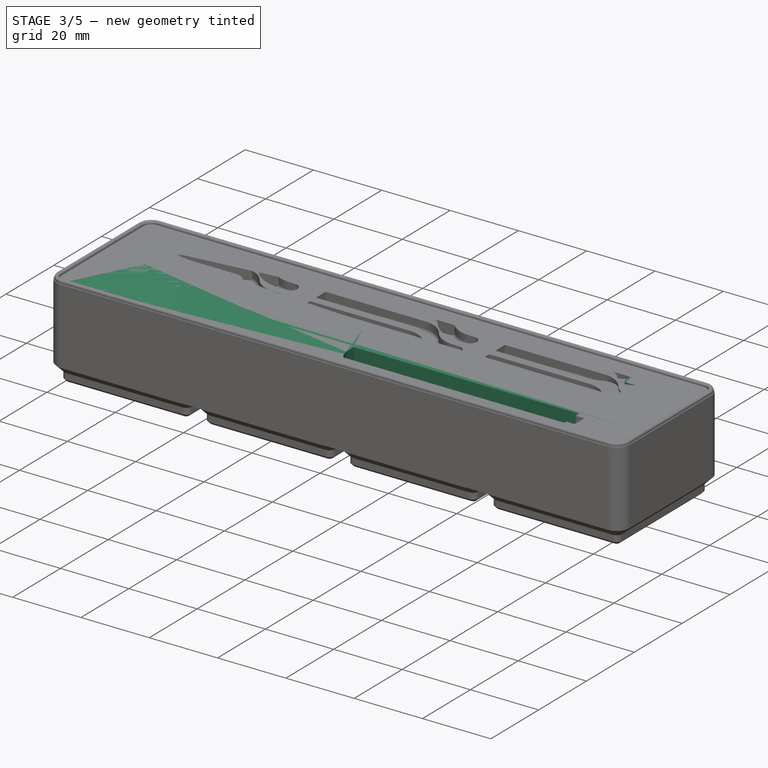
[diagram: stage 3 of 5 — iso view after this stage's code; geometry added in this stage tinted green]
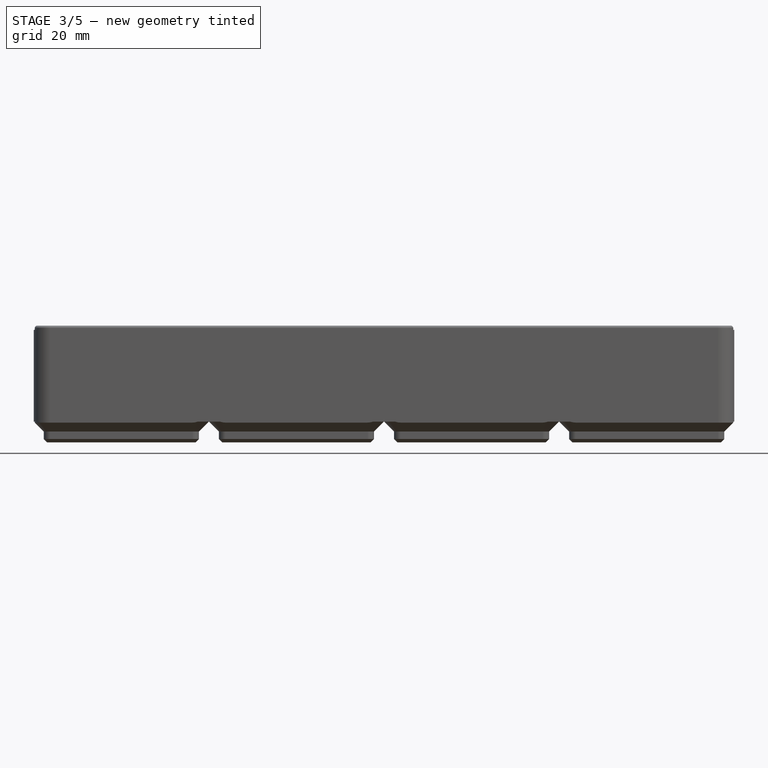
[diagram: stage 3 of 5 — front view after this stage's code; geometry added in this stage tinted green]
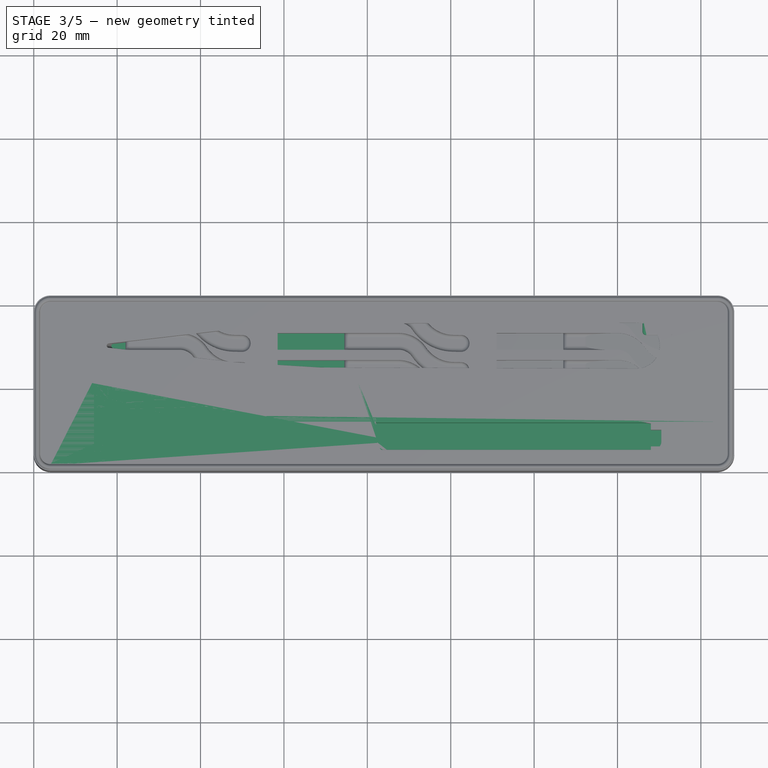
[diagram: stage 3 of 5 — top view after this stage's code; geometry added in this stage tinted green]
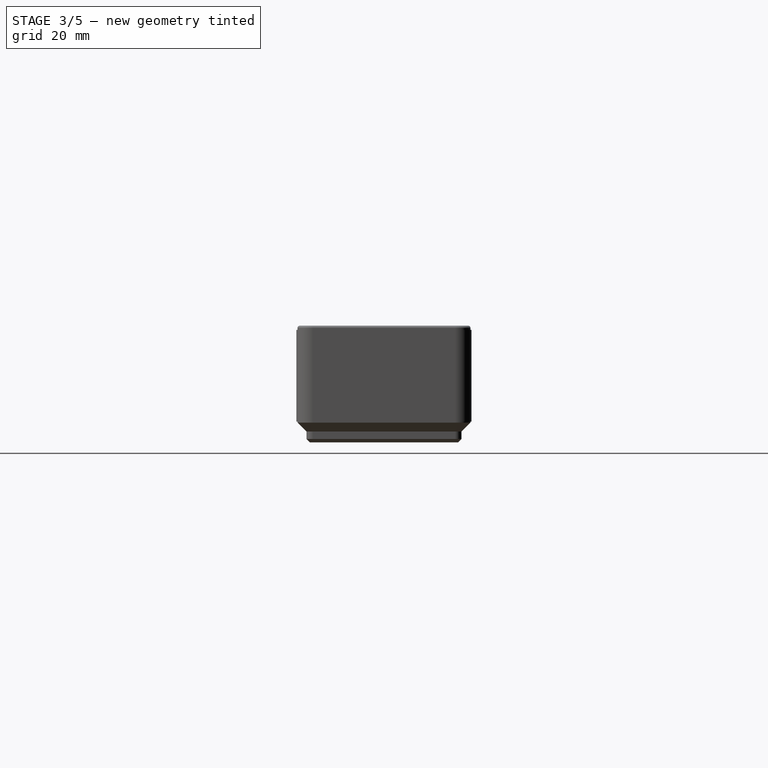
[diagram: stage 3 of 5 — right view after this stage's code; geometry added in this stage tinted green]
FEATURE [PartDesign::Body] Body005  label="Center punch holder"
  BaseFeature = -> Pad
  Group = -> [Clone004,Sketch026,Sketch025,Pocket011,Pocket012,Pocket013,Fillet010,Fillet011,Sketch027]
  Origin = -> Origin005
  Tip = -> Fillet011
FEATURE [PartDesign::FeatureBase] Clone005
  BaseFeature = -> Pad
  Placement = pos=(0,0,0) rot=(0.57735,0.57735,0.57735;2.0944rad)
FEATURE [Sketcher::SketchObject] Sketch028
  AttachmentOffset = pos=(0,0,20) rot=(0,0,1;0rad)
  FullyConstrained = true
  MapMode = 5
  Placement = pos=(0,0,20) rot=(0,0,1;0rad)
  Support = -> [XY_Plane006]
  sketch-geometry (12):
    g0: ArcOfCircle CenterX=14 CenterY=29 CenterZ=0 NormalX=0 NormalY=0 NormalZ=1 AngleXU=0 Radius=8 StartAngle=1.5708 EndAngle=4.71239
    g1: ArcOfCircle CenterX=154 CenterY=29 CenterZ=0 NormalX=0 NormalY=0 NormalZ=1 AngleXU=0 Radius=8 StartAngle=4.71239 EndAngle=7.85398
    g2: LineSegment StartX=14 StartY=21 StartZ=0 EndX=154 EndY=21 EndZ=0
    g3: LineSegment StartX=154 StartY=37 StartZ=0 EndX=14 EndY=37 EndZ=0
    g4: LineSegment StartX=89 StartY=2 StartZ=0 EndX=155 EndY=2 EndZ=0
    g5: LineSegment StartX=155 StartY=18 StartZ=0 EndX=89 EndY=18 EndZ=0
    g6: LineSegment StartX=162 StartY=11 StartZ=0 EndX=162 EndY=9 EndZ=0
    g7: ArcOfCircle CenterX=155 CenterY=11 CenterZ=0 NormalX=0 NormalY=0 NormalZ=1 AngleXU=0 Radius=7 StartAngle=0 EndAngle=1.5708
    g8: ArcOfCircle CenterX=155 CenterY=9 CenterZ=0 NormalX=0 NormalY=0 NormalZ=1 AngleXU=0 Radius=7 StartAngle=4.71239 EndAngle=6.28319
    g9: LineSegment StartX=82 StartY=9 StartZ=0 EndX=82 EndY=11 EndZ=0
    g10: ArcOfCircle CenterX=89 CenterY=11 CenterZ=0 NormalX=0 NormalY=0 NormalZ=1 AngleXU=0 Radius=7 StartAngle=1.5708 EndAngle=3.14159
    g11: ArcOfCircle CenterX=89 CenterY=9 CenterZ=0 NormalX=0 NormalY=0 NormalZ=1 AngleXU=0 Radius=7 StartAngle=3.14159 EndAngle=4.71239
  constraints (30):
    c: Tangent(g0,g2) = -1.5708
    c: Tangent(g2,g1) = -1.5708
    c: Tangent(g1,g3) = -1.5708
    c: Tangent(g3,g0) = -1.5708
    c: Equal(g0,g1)
    c: Horizontal(g2)
    c: Radius(g1) = 8
    c: Horizontal(g4)
    c: DistanceX(g0,g1) = 140
    c: DistanceY(g-1,g0) = 29
    c: DistanceX(g-1,g0) = 14
    c: Vertical(g6)
    c: Tangent(g5,g7) = -1.5708
    c: Tangent(g6,g7) = 1.5708
    c: Tangent(g4,g8) = -1.5708
    c: Tangent(g6,g8) = 1.5708
    c: Vertical(g9)
    c: Horizontal(g5)
    c: Tangent(g5,g10) = -1.5708
    c: Tangent(g9,g10) = 1.5708
    c: Tangent(g4,g11) = -1.5708
    c: Tangent(g9,g11) = 1.5708
    c: Equal(g8,g7)
    c: Equal(g7,g10)
    c: Equal(g10,g11)
    c: DistanceX(g-1,g9) = 82
    c: DistanceX(g9,g6) = 80
    c: DistanceY(g-1,g4) = 2
    c: Radius(g10) = 7
    c: DistanceY(g4,g5) = 16
FEATURE [PartDesign::Pocket] Pocket014
  BaseFeature = -> Clone005
  Direction = (0,0,-1)
  Length = 5
  Length2 = 5
  Placement = pos=(0,0,0) rot=(0.57735,0.57735,0.57735;2.0944rad)
  Profile = -> Sketch028
  ReferenceAxis = -> Sketch028 [N_Axis]
  Reversed = true
  Type = 1
FEATURE [Sketcher::SketchObject] Sketch029
  AttachmentOffset = pos=(0,0,20) rot=(0,0,1;0rad)
  ExternalGeometry = -> [Sketch028]
  FullyConstrained = true
  MapMode = 5
  Placement = pos=(0,0,20) rot=(0,0,1;0rad)
  Support = -> [XY_Plane006]
  sketch-geometry (5):
    g0: ArcOfCircle CenterX=84 CenterY=32 CenterZ=0 NormalX=0 NormalY=0 NormalZ=1 AngleXU=0 Radius=8 StartAngle=0 EndAngle=3.14159
    g1: ArcOfCircle CenterX=84 CenterY=26 CenterZ=0 NormalX=0 NormalY=0 NormalZ=1 AngleXU=0 Radius=8 StartAngle=3.14159 EndAngle=6.28319
    g2: LineSegment StartX=76 StartY=32 StartZ=0 EndX=76 EndY=26 EndZ=0
    g3: LineSegment StartX=92 StartY=26 StartZ=0 EndX=92 EndY=32 EndZ=0
    g4: LineSegment StartX=84 StartY=26 StartZ=0 EndX=84 EndY=37 EndZ=0
  constraints (12):
    c: Tangent(g0,g2) = -1.5708
    c: Tangent(g2,g1) = -1.5708
    c: Tangent(g1,g3) = -1.5708
    c: Tangent(g3,g0) = -1.5708
    c: Equal(g0,g1)
    c: Vertical(g2)
    c: DistanceY(g1,g0) = 6
    c: Radius(g1) = 8
    c: DistanceY(g-1,g1) = 26
    c: Coincident(g4,g1)
    c: Vertical(g4)
    c: Symmetric(g-3,g-3,g4)
FEATURE [PartDesign::Pocket] Pocket015
  BaseFeature = -> Pocket014
  Direction = (0,0,-1)
  Length = 5
  Length2 = 5
  Placement = pos=(0,0,0) rot=(0.57735,0.57735,0.57735;2.0944rad)
  Profile = -> Sketch029
  ReferenceAxis = -> Sketch029 [N_Axis]
  Refine = true
  Reversed = true
  Type = 1
FEATURE [PartDesign::Body] Body006  label="Exacto knife holder"
  BaseFeature = -> Pad
  Group = -> [Clone005,Sketch029,Sketch028,Pocket014,Pocket015,Fillet012,Fillet013]
  Origin = -> Origin006
  Tip = -> Fillet013
FEATURE [PartDesign::FeatureBase] Clone006
  BaseFeature = -> Pad
  Placement = pos=(0,0,0) rot=(0.57735,0.57735,0.57735;2.0944rad)
FEATURE [Sketcher::SketchObject] Sketch030  label="Cutter sketch"
  AttachmentOffset = pos=(0,0,10) rot=(0,0,1;0rad)
  FullyConstrained = true
  MapMode = 5
  Placement = pos=(0,0,10) rot=(0,0,1;0rad)
  Support = -> [XY_Plane007]
  sketch-geometry (31):
    g0: ArcOfCircle CenterX=5 CenterY=37.0009 CenterZ=0 NormalX=0 NormalY=0 NormalZ=1 AngleXU=0 Radius=3 StartAngle=1.54597 EndAngle=3.14159
    g1: ArcOfCircle CenterX=163 CenterY=29.5 CenterZ=0 NormalX=0 NormalY=0 NormalZ=1 AngleXU=0 Radius=3 StartAngle=5e-16 EndAngle=1.5708
    g2: LineSegment StartX=166 StartY=29.5 StartZ=0 EndX=166 EndY=26 EndZ=0
    g3: ArcOfCircle CenterX=163 CenterY=26 CenterZ=0 NormalX=0 NormalY=0 NormalZ=1 AngleXU=0 Radius=3 StartAngle=4.71239 EndAngle=6.28319
    g4: ArcOfCircle CenterX=5 CenterY=24 CenterZ=0 NormalX=0 NormalY=0 NormalZ=1 AngleXU=0 Radius=3 StartAngle=3.14159 EndAngle=4.71239
    g5: LineSegment StartX=2 StartY=24 StartZ=0 EndX=2 EndY=37.0009 EndZ=0
    g6: LineSegment StartX=5 StartY=21 StartZ=0 EndX=29 EndY=21 EndZ=0
    g7: LineSegment StartX=31 StartY=19 StartZ=0 EndX=31 EndY=14 EndZ=0
    g8: LineSegment StartX=32 StartY=13 StartZ=0 EndX=55 EndY=13 EndZ=0
    g9: LineSegment StartX=56 StartY=14 StartZ=0 EndX=56 EndY=19 EndZ=0
    g10: ArcOfCircle CenterX=29 CenterY=19 CenterZ=0 NormalX=0 NormalY=0 NormalZ=1 AngleXU=0 Radius=2 StartAngle=5e-16 EndAngle=1.5708
    g11: GeomPoint X=31 Y=21 Z=0
    g12: ArcOfCircle CenterX=58 CenterY=19 CenterZ=0 NormalX=0 NormalY=0 NormalZ=1 AngleXU=0 Radius=2 StartAngle=1.5708 EndAngle=3.14159
    g13: LineSegment StartX=163 StartY=32.5 StartZ=0 EndX=146.9 EndY=32.5 EndZ=0
    g14: LineSegment StartX=146 StartY=33.4 StartZ=0 EndX=146 EndY=35.6221 EndZ=0
    g15: LineSegment StartX=145.122 StartY=36.5218 StartZ=0 EndX=5.07448 EndY=40 EndZ=0
    g16: LineSegment StartX=58 StartY=21 StartZ=0 EndX=145.1 EndY=21 EndZ=0
    g17: LineSegment StartX=146 StartY=21.9 StartZ=0 EndX=146 EndY=22.1 EndZ=0
    g18: LineSegment StartX=146.9 StartY=23 StartZ=0 EndX=163 EndY=23 EndZ=0
    g19: ArcOfCircle CenterX=32 CenterY=14 CenterZ=0 NormalX=0 NormalY=0 NormalZ=1 AngleXU=0 Radius=1 StartAngle=3.14159 EndAngle=4.71239
    g20: GeomPoint X=31 Y=13 Z=0
    g21: ArcOfCircle CenterX=55 CenterY=14 CenterZ=0 NormalX=0 NormalY=0 NormalZ=1 AngleXU=0 Radius=1 StartAngle=4.71239 EndAngle=6.28319
    g22: GeomPoint X=56 Y=13 Z=0
    g23: ArcOfCircle CenterX=145.1 CenterY=21.9 CenterZ=0 NormalX=0 NormalY=0 NormalZ=1 AngleXU=0 Radius=0.9 StartAngle=4.71239 EndAngle=6.28319
    g24: GeomPoint X=146 Y=21 Z=0
    g25: ArcOfCircle CenterX=146.9 CenterY=22.1 CenterZ=0 NormalX=0 NormalY=0 NormalZ=1 AngleXU=0 Radius=0.9 StartAngle=1.5708 EndAngle=3.14159
    g26: GeomPoint X=146 Y=23 Z=0
    g27: ArcOfCircle CenterX=146.9 CenterY=33.4 CenterZ=0 NormalX=0 NormalY=0 NormalZ=1 AngleXU=0 Radius=0.9 StartAngle=3.14159 EndAngle=4.71239
    g28: GeomPoint X=146 Y=32.5 Z=0
    g29: ArcOfCircle CenterX=145.1 CenterY=35.6221 CenterZ=0 NormalX=0 NormalY=0 NormalZ=1 AngleXU=0 Radius=0.9 StartAngle=1.1e-15 EndAngle=1.54597
    g30: GeomPoint X=146 Y=36.5 Z=0
  constraints (74):
    c: Tangent(g1,g2) = 1.5708
    c: Tangent(g2,g3) = 1.5708
    c: Tangent(g4,g5) = 1.5708
    c: Tangent(g5,g0) = 1.5708
    c: Vertical(g2)
    c: Vertical(g5)
    c: Equal(g0,g1)
    c: Equal(g1,g3)
    c: Equal(g3,g4)
    c: Horizontal(g6)
    c: Horizontal(g8)
    c: Vertical(g9)
    c: DistanceY(g4,g0) = 19
    c: Vertical(g7)
    c: DistanceY(g20,g11) = 8
    c: PointOnObject(g11,g6)
    c: PointOnObject(g11,g7)
    c: Tangent(g6,g10) = 1.5708
    c: Tangent(g7,g10) = 1.5708
    c: Tangent(g9,g12) = 1.5708
    c: Equal(g10,g12)
    c: Radius(g10) = 2
    c: Radius(g1) = 3
    c: DistanceX(g4,g7) = 29
    c: DistanceX(g20,g22) = 25
    c: DistanceX(g0,g1) = 164
    c: Tangent(g6,g4) = -1.5708
    c: Horizontal(g13)
    c: Vertical(g14)
    c: Horizontal(g16)
    c: Vertical(g17)
    c: Horizontal(g18)
    c: DistanceY(g24,g30) = 15.5
    c: DistanceX(g28,g2) = 20
    c: Vertical(g26,g28)
    c: DistanceY(g24,g26) = 2
    c: DistanceY(g28,g30) = 4
    c: Tangent(g16,g12) = 1.5708
    c: Horizontal(g9,g7)
    c: Tangent(g15,g0) = -1.5708
    c: Tangent(g18,g3) = -1.5708
    c: Tangent(g13,g1) = -1.5708
    c: DistanceX(g-1,g4) = 2
    c: DistanceY(g-1,g4) = 21
    c: PointOnObject(g20,g7)
    c: PointOnObject(g20,g8)
    c: Tangent(g7,g19) = -1.5708
    c: Tangent(g8,g19) = -1.5708
    c: PointOnObject(g22,g8)
    c: PointOnObject(g22,g9)
    c: Tangent(g8,g21) = -1.5708
    c: Tangent(g9,g21) = -1.5708
    c: PointOnObject(g24,g16)
    c: PointOnObject(g24,g17)
    c: Tangent(g16,g23) = -1.5708
    c: Tangent(g17,g23) = -1.5708
    c: PointOnObject(g26,g17)
    c: PointOnObject(g26,g18)
    c: Tangent(g17,g25) = 1.5708
    c: Tangent(g18,g25) = 1.5708
    c: PointOnObject(g28,g13)
    c: PointOnObject(g28,g14)
    c: Tangent(g13,g27) = 1.5708
    c: Tangent(g14,g27) = 1.5708
    c: PointOnObject(g30,g14)
    c: PointOnObject(g30,g15)
    c: Tangent(g14,g29) = -1.5708
    c: Tangent(g15,g29) = -1.5708
    c: Equal(g29,g27)
    c: Equal(g27,g25)
    c: Equal(g25,g23)
    c: Equal(g21,g19)
    c: Radius(g19) = 1
    c: DistanceY(g17,g17) = 0.2
FEATURE [PartDesign::Pocket] Pocket016
  BaseFeature = -> Clone006
  Direction = (0,0,-1)
  Length = 5
  Length2 = 5
  Placement = pos=(0,0,0) rot=(0.57735,0.57735,0.57735;2.0944rad)
  Profile = -> Sketch030
  ReferenceAxis = -> Sketch030 [N_Axis]
  Reversed = true
  Type = 1
FEATURE [Sketcher::SketchObject] Sketch032  label="Blade box sketch"
  AttachmentOffset = pos=(0,0,15) rot=(0,0,1;0rad)
  FullyConstrained = true
  MapMode = 5
  Placement = pos=(0,0,15) rot=(0,0,1;0rad)
  Support = -> [XY_Plane007]
  sketch-geometry (8):
    g0: LineSegment StartX=38 StartY=2 StartZ=0 EndX=164 EndY=2 EndZ=0
    g1: LineSegment StartX=164 StartY=11.5 StartZ=0 EndX=38 EndY=11.5 EndZ=0
    g2: LineSegment StartX=166 StartY=9.5 StartZ=0 EndX=166 EndY=4 EndZ=0
    g3: ArcOfCircle CenterX=164 CenterY=9.5 CenterZ=0 NormalX=0 NormalY=0 NormalZ=1 AngleXU=0 Radius=2 StartAngle=0 EndAngle=1.5708
    g4: ArcOfCircle CenterX=164 CenterY=4 CenterZ=0 NormalX=0 NormalY=0 NormalZ=1 AngleXU=0 Radius=2 StartAngle=4.71239 EndAngle=6.28319
    g5: LineSegment StartX=36 StartY=4 StartZ=0 EndX=36 EndY=9.5 EndZ=0
    g6: ArcOfCircle CenterX=38 CenterY=9.5 CenterZ=0 NormalX=0 NormalY=0 NormalZ=1 AngleXU=0 Radius=2 StartAngle=1.5708 EndAngle=3.14159
    g7: ArcOfCircle CenterX=38 CenterY=4 CenterZ=0 NormalX=0 NormalY=0 NormalZ=1 AngleXU=0 Radius=2 StartAngle=3.14159 EndAngle=4.71239
  constraints (20):
    c: Horizontal(g0)
    c: Vertical(g2)
    c: Tangent(g1,g3) = -1.5708
    c: Tangent(g2,g3) = 1.5708
    c: Tangent(g0,g4) = -1.5708
    c: Tangent(g2,g4) = 1.5708
    c: Vertical(g5)
    c: Horizontal(g1)
    c: Tangent(g1,g6) = -1.5708
    c: Tangent(g5,g6) = 1.5708
    c: Tangent(g0,g7) = -1.5708
    c: Tangent(g5,g7) = 1.5708
    c: Equal(g4,g3)
    c: Equal(g3,g6)
    c: Equal(g6,g7)
    c: DistanceX(g-1,g5) = 36
    c: DistanceX(g5,g2) = 130
    c: DistanceY(g-1,g0) = 2
    c: Radius(g6) = 2
    c: DistanceY(g0,g1) = 9.5
FEATURE [PartDesign::Pocket] Pocket018
  BaseFeature = -> Pocket016
  Direction = (0,0,-1)
  Length = 5
  Length2 = 5
  Placement = pos=(0,0,0) rot=(0.57735,0.57735,0.57735;2.0944rad)
  Profile = -> Sketch032
  ReferenceAxis = -> Sketch032 [N_Axis]
  Reversed = true
  Type = 1
FEATURE [PartDesign::Fillet] Fillet014
  Base = -> Pocket018 [Face211,Face210]
  BaseFeature = -> Pocket018
  Placement = pos=(0,0,0) rot=(0.57735,0.57735,0.57735;2.0944rad)
  Radius = 2
  SupportTransform = false
  UseAllEdges = false
FEATURE [PartDesign::Fillet] Fillet015
  Base = -> Fillet014 [Face4]
  BaseFeature = -> Fillet014
  Placement = pos=(0,0,0) rot=(0.57735,0.57735,0.57735;2.0944rad)
  Radius = 0.25
  SupportTransform = false
  UseAllEdges = false
FEATURE [PartDesign::Fillet] Fillet023
  Base = -> Fillet022 [Face212]
  BaseFeature = -> Fillet022
  Placement = pos=(0,0,0) rot=(0.57735,0.57735,0.57735;2.0944rad)
  Radius = 1
  SupportTransform = false
  UseAllEdges = false
FEATURE [PartDesign::Fillet] Fillet024
  Base = -> Fillet023 [Face183]
  BaseFeature = -> Fillet023
  Placement = pos=(0,0,0) rot=(0.57735,0.57735,0.57735;2.0944rad)
  Radius = 1
  SupportTransform = false
  UseAllEdges = false
FEATURE [PartDesign::Fillet] Fillet025
  Base = -> Fillet024 [Face141]
  BaseFeature = -> Fillet024
  Placement = pos=(0,0,0) rot=(0.57735,0.57735,0.57735;2.0944rad)
  Radius = 1
  SupportTransform = false
  UseAllEdges = false
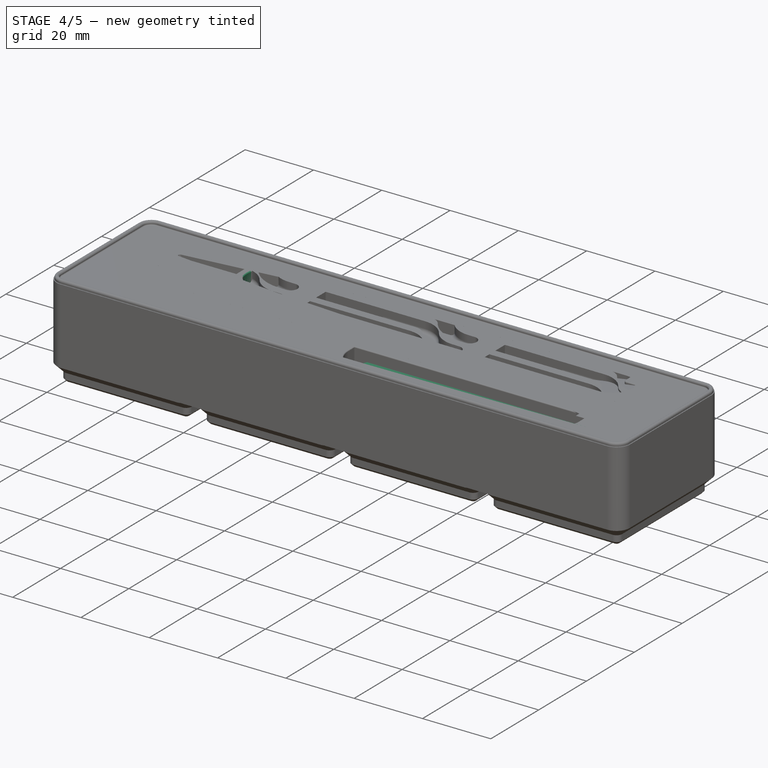
[diagram: stage 4 of 5 — iso view after this stage's code; geometry added in this stage tinted green]
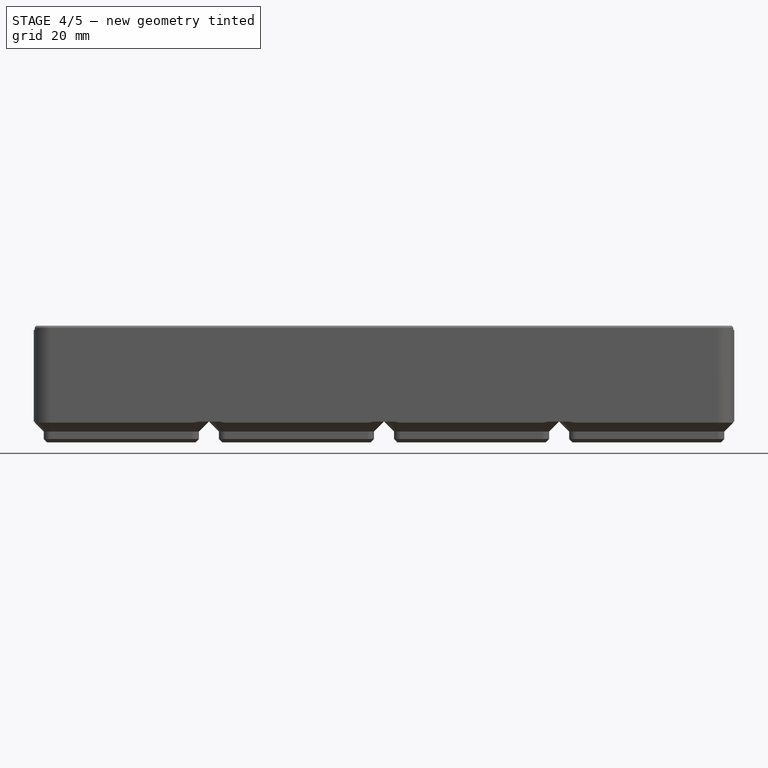
[diagram: stage 4 of 5 — front view after this stage's code; geometry added in this stage tinted green]
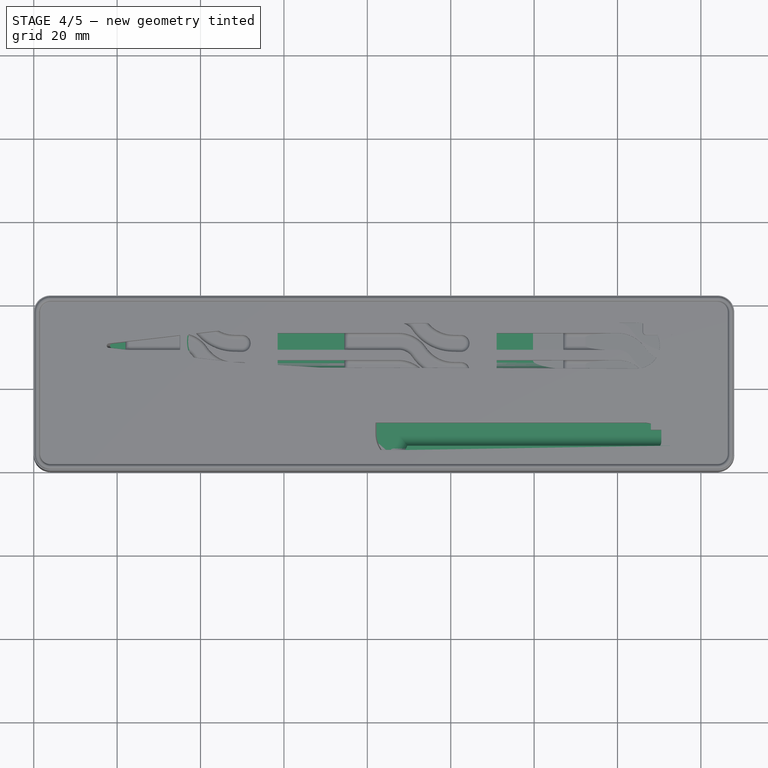
[diagram: stage 4 of 5 — top view after this stage's code; geometry added in this stage tinted green]
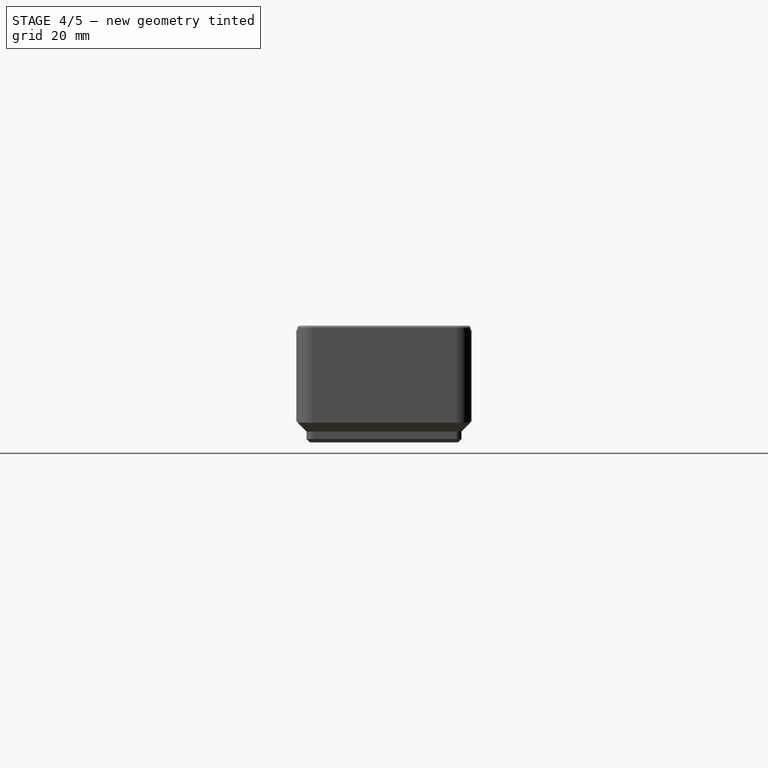
[diagram: stage 4 of 5 — right view after this stage's code; geometry added in this stage tinted green]
FEATURE [PartDesign::Body] Body  label="Pen holder"
  BaseFeature = -> Pad
  Group = -> [Clone,Sketch015,Sketch,Pocket001,Pocket002,Fillet,Fillet007]
  Origin = -> Origin
  Tip = -> Fillet007
FEATURE [PartDesign::FeatureBase] Clone003
  BaseFeature = -> Pad
  Placement = pos=(0,0,0) rot=(0.57735,0.57735,0.57735;2.0944rad)
FEATURE [Sketcher::SketchObject] Sketch023
  AttachmentOffset = pos=(0,0,22) rot=(0,0,1;0rad)
  FullyConstrained = true
  MapMode = 5
  Placement = pos=(0,0,22) rot=(0,0,1;0rad)
  Support = -> [XY_Plane004]
  sketch-geometry (8):
    g0: ArcOfCircle CenterX=12 CenterY=30 CenterZ=0 NormalX=0 NormalY=0 NormalZ=1 AngleXU=0 Radius=6 StartAngle=1.5708 EndAngle=4.71239
    g1: ArcOfCircle CenterX=156 CenterY=30 CenterZ=0 NormalX=0 NormalY=0 NormalZ=1 AngleXU=0 Radius=6 StartAngle=4.71239 EndAngle=7.85398
    g2: LineSegment StartX=12 StartY=24 StartZ=0 EndX=156 EndY=24 EndZ=0
    g3: LineSegment StartX=156 StartY=36 StartZ=0 EndX=12 EndY=36 EndZ=0
    g4: ArcOfCircle CenterX=14 CenterY=14 CenterZ=0 NormalX=0 NormalY=0 NormalZ=1 AngleXU=0 Radius=8 StartAngle=1.5708 EndAngle=4.71239
    g5: ArcOfCircle CenterX=154 CenterY=14 CenterZ=0 NormalX=0 NormalY=0 NormalZ=1 AngleXU=0 Radius=8 StartAngle=4.71239 EndAngle=7.85398
    g6: LineSegment StartX=14 StartY=6 StartZ=0 EndX=154 EndY=6 EndZ=0
    g7: LineSegment StartX=154 StartY=22 StartZ=0 EndX=14 EndY=22 EndZ=0
  constraints (20):
    c: Tangent(g0,g2) = -1.5708
    c: Tangent(g2,g1) = -1.5708
    c: Tangent(g1,g3) = -1.5708
    c: Tangent(g3,g0) = -1.5708
    c: Equal(g0,g1)
    c: Horizontal(g2)
    c: Radius(g1) = 6
    c: Tangent(g4,g6) = -1.5708
    c: Tangent(g6,g5) = -1.5708
    c: Tangent(g5,g7) = -1.5708
    c: Tangent(g7,g4) = -1.5708
    c: Equal(g4,g5)
    c: Horizontal(g6)
    c: Radius(g5) = 8
    c: DistanceX(g-1,g4) = 14
    c: DistanceX(g4,g5) = 140
    c: DistanceY(g5,g1) = 16
    c: DistanceY(g-1,g0) = 30
    c: DistanceX(g-1,g0) = 12
    c: DistanceX(g0,g1) = 144
FEATURE [PartDesign::Pocket] Pocket009
  BaseFeature = -> Clone003
  Direction = (0,0,-1)
  Length = 5
  Length2 = 5
  Placement = pos=(0,0,0) rot=(0.57735,0.57735,0.57735;2.0944rad)
  Profile = -> Sketch023
  ReferenceAxis = -> Sketch023 [N_Axis]
  Reversed = true
  Type = 1
FEATURE [Sketcher::SketchObject] Sketch024
  AttachmentOffset = pos=(0,0,22) rot=(0,0,1;0rad)
  FullyConstrained = false
  MapMode = 5
  Placement = pos=(0,0,22) rot=(0,0,1;0rad)
  Support = -> [XY_Plane004]
  sketch-geometry (4):
    g0: ArcOfCircle CenterX=84 CenterY=33.2012 CenterZ=0 NormalX=0 NormalY=0 NormalZ=1 AngleXU=0 Radius=6 StartAngle=-9e-16 EndAngle=3.14159
    g1: ArcOfCircle CenterX=84 CenterY=8.20124 CenterZ=0 NormalX=0 NormalY=0 NormalZ=1 AngleXU=0 Radius=6 StartAngle=3.14159 EndAngle=6.28319
    g2: LineSegment StartX=78 StartY=33.2012 StartZ=0 EndX=78 EndY=8.20124 EndZ=0
    g3: LineSegment StartX=90 StartY=8.20124 StartZ=0 EndX=90 EndY=33.2012 EndZ=0
  constraints (9):
    c: Tangent(g0,g2) = -1.5708
    c: Tangent(g2,g1) = -1.5708
    c: Tangent(g1,g3) = -1.5708
    c: Tangent(g3,g0) = -1.5708
    c: Equal(g0,g1)
    c: Vertical(g2)
    c: DistanceY(g1,g0) = 25
    c: DistanceX(g-1,g1) = 84
    c: Radius(g0) = 6
FEATURE [PartDesign::Pocket] Pocket010
  BaseFeature = -> Pocket009
  Direction = (0,0,-1)
  Length = 5
  Length2 = 5
  Placement = pos=(0,0,0) rot=(0.57735,0.57735,0.57735;2.0944rad)
  Profile = -> Sketch024
  ReferenceAxis = -> Sketch024 [N_Axis]
  Refine = true
  Reversed = true
  Type = 1
FEATURE [PartDesign::Fillet] Fillet008
  Base = -> Pocket010 [Face194]
  BaseFeature = -> Pocket010
  Placement = pos=(0,0,0) rot=(0.57735,0.57735,0.57735;2.0944rad)
  Radius = 2.5
  SupportTransform = false
  UseAllEdges = false
FEATURE [PartDesign::Body] Body004  label="Marker and pen holder"
  BaseFeature = -> Pad
  Group = -> [Clone003,Sketch024,Sketch023,Pocket009,Pocket010,Fillet008,Fillet009]
  Origin = -> Origin004
  Tip = -> Fillet009
FEATURE [PartDesign::FeatureBase] Clone004
  BaseFeature = -> Pad
  Placement = pos=(0,0,0) rot=(0.57735,0.57735,0.57735;2.0944rad)
FEATURE [Sketcher::SketchObject] Sketch025
  AttachmentOffset = pos=(0,0,20) rot=(0,0,1;0rad)
  FullyConstrained = true
  MapMode = 5
  Placement = pos=(0,0,20) rot=(0,0,1;0rad)
  Support = -> [XY_Plane005]
  sketch-geometry (8):
    g0: ArcOfCircle CenterX=45 CenterY=31 CenterZ=0 NormalX=0 NormalY=0 NormalZ=1 AngleXU=0 Radius=8 StartAngle=1.5708 EndAngle=4.71239
    g1: ArcOfCircle CenterX=156 CenterY=31 CenterZ=0 NormalX=0 NormalY=0 NormalZ=1 AngleXU=0 Radius=8 StartAngle=4.71239 EndAngle=7.85398
    g2: LineSegment StartX=45 StartY=23 StartZ=0 EndX=156 EndY=23 EndZ=0
    g3: LineSegment StartX=156 StartY=39 StartZ=0 EndX=45 EndY=39 EndZ=0
    g4: ArcOfCircle CenterX=45 CenterY=11 CenterZ=0 NormalX=0 NormalY=0 NormalZ=1 AngleXU=0 Radius=8 StartAngle=1.5708 EndAngle=4.71239
    g5: ArcOfCircle CenterX=156 CenterY=11 CenterZ=0 NormalX=0 NormalY=0 NormalZ=1 AngleXU=0 Radius=8 StartAngle=4.71239 EndAngle=7.85398
    g6: LineSegment StartX=45 StartY=3 StartZ=0 EndX=156 EndY=3 EndZ=0
    g7: LineSegment StartX=156 StartY=19 StartZ=0 EndX=45 EndY=19 EndZ=0
  constraints (20):
    c: Tangent(g0,g2) = -1.5708
    c: Tangent(g2,g1) = -1.5708
    c: Tangent(g1,g3) = -1.5708
    c: Tangent(g3,g0) = -1.5708
    c: Equal(g0,g1)
    c: Horizontal(g2)
    c: Tangent(g4,g6) = -1.5708
    c: Tangent(g6,g5) = -1.5708
    c: Tangent(g5,g7) = -1.5708
    c: Tangent(g7,g4) = -1.5708
    c: Equal(g4,g5)
    c: Horizontal(g6)
    c: Radius(g5) = 8
    c: DistanceX(g-1,g4) = 45
    c: DistanceX(g4,g5) = 111
    c: DistanceY(g5,g1) = 20
    c: DistanceY(g-1,g0) = 31
    c: Equal(g5,g1)
    c: Vertical(g1,g5)
    c: Vertical(g0,g4)
FEATURE [PartDesign::Pocket] Pocket011
  BaseFeature = -> Clone004
  Direction = (0,0,-1)
  Length = 5
  Length2 = 5
  Placement = pos=(0,0,0) rot=(0.57735,0.57735,0.57735;2.0944rad)
  Profile = -> Sketch025
  ReferenceAxis = -> Sketch025 [N_Axis]
  Reversed = true
  Type = 1
FEATURE [Sketcher::SketchObject] Sketch026
  AttachmentOffset = pos=(0,0,20) rot=(0,0,1;0rad)
  ExternalGeometry = -> [Sketch025]
  FullyConstrained = true
  MapMode = 5
  Placement = pos=(0,0,20) rot=(0,0,1;0rad)
  Support = -> [XY_Plane005]
  sketch-geometry (5):
    g0: ArcOfCircle CenterX=100.5 CenterY=24 CenterZ=0 NormalX=0 NormalY=0 NormalZ=1 AngleXU=0 Radius=8 StartAngle=1e-16 EndAngle=3.14159
    g1: ArcOfCircle CenterX=100.5 CenterY=14 CenterZ=0 NormalX=0 NormalY=0 NormalZ=1 AngleXU=0 Radius=8 StartAngle=3.14159 EndAngle=6.28319
    g2: LineSegment StartX=92.5 StartY=24 StartZ=0 EndX=92.5 EndY=14 EndZ=0
    g3: LineSegment StartX=108.5 StartY=14 StartZ=0 EndX=108.5 EndY=24 EndZ=0
    g4: LineSegment StartX=100.5 StartY=14 StartZ=0 EndX=100.5 EndY=23 EndZ=0
  constraints (12):
    c: Tangent(g0,g2) = -1.5708
    c: Tangent(g2,g1) = -1.5708
    c: Tangent(g1,g3) = -1.5708
    c: Tangent(g3,g0) = -1.5708
    c: Equal(g0,g1)
    c: Vertical(g2)
    c: DistanceY(g1,g0) = 10
    c: Radius(g0) = 8
    c: DistanceY(g-1,g1) = 14
    c: Coincident(g4,g1)
    c: Vertical(g4)
    c: Symmetric(g-3,g-3,g4)
FEATURE [PartDesign::Pocket] Pocket012
  BaseFeature = -> Pocket011
  Direction = (0,0,-1)
  Length = 5
  Length2 = 5
  Placement = pos=(0,0,0) rot=(0.57735,0.57735,0.57735;2.0944rad)
  Profile = -> Sketch026
  ReferenceAxis = -> Sketch026 [N_Axis]
  Refine = true
  Reversed = true
  Type = 1
FEATURE [Sketcher::SketchObject] Sketch027
  AttachmentOffset = pos=(0,0,15) rot=(0,0,1;0rad)
  FullyConstrained = true
  MapMode = 5
  Placement = pos=(0,0,15) rot=(0,0,1;0rad)
  Support = -> [XY_Plane005]
  sketch-geometry (10):
    g0: ArcOfCircle CenterX=6 CenterY=36 CenterZ=0 NormalX=0 NormalY=0 NormalZ=1 AngleXU=0 Radius=3 StartAngle=1.5708 EndAngle=3.14159
    g1: LineSegment StartX=6 StartY=39 StartZ=0 EndX=32 EndY=39 EndZ=0
    g2: ArcOfCircle CenterX=32 CenterY=36 CenterZ=0 NormalX=0 NormalY=0 NormalZ=1 AngleXU=0 Radius=3 StartAngle=1e-15 EndAngle=1.5708
    g3: LineSegment StartX=35 StartY=36 StartZ=0 EndX=35 EndY=6 EndZ=0
    g4: ArcOfCircle CenterX=32 CenterY=6 CenterZ=0 NormalX=0 NormalY=0 NormalZ=1 AngleXU=0 Radius=3 StartAngle=4.71239 EndAngle=6.28319
    g5: LineSegment StartX=32 StartY=3 StartZ=0 EndX=6 EndY=3 EndZ=0
    g6: ArcOfCircle CenterX=6 CenterY=6 CenterZ=0 NormalX=0 NormalY=0 NormalZ=1 AngleXU=0 Radius=3 StartAngle=3.14159 EndAngle=4.71239
    g7: LineSegment StartX=3 StartY=6 StartZ=0 EndX=3 EndY=36 EndZ=0
    g8: GeomPoint X=3 Y=39 Z=0
    g9: GeomPoint X=35 Y=3 Z=0
  constraints (24):
    c: Tangent(g0,g1) = 1.5708
    c: Tangent(g1,g2) = 1.5708
    c: Tangent(g2,g3) = 1.5708
    c: Tangent(g3,g4) = 1.5708
    c: Tangent(g4,g5) = 1.5708
    c: Tangent(g5,g6) = 1.5708
    c: Tangent(g6,g7) = 1.5708
    c: Tangent(g7,g0) = 1.5708
    c: Horizontal(g1)
    c: Horizontal(g5)
    c: Vertical(g3)
    c: Vertical(g7)
    c: Equal(g0,g2)
    c: Equal(g2,g4)
    c: Equal(g4,g6)
    c: PointOnObject(g8,g1)
    c: PointOnObject(g8,g7)
    c: PointOnObject(g9,g3)
    c: PointOnObject(g9,g5)
    c: Radius(g2) = 3
    c: DistanceY(g5,g0) = 36
    c: DistanceX(g6,g3) = 32
    c: DistanceY(g5) = 3
    c: DistanceX(g-1,g6) = 3
FEATURE [PartDesign::Pocket] Pocket013
  BaseFeature = -> Pocket012
  Direction = (0,0,-1)
  Length = 5
  Length2 = 5
  Placement = pos=(0,0,0) rot=(0.57735,0.57735,0.57735;2.0944rad)
  Profile = -> Sketch027
  ReferenceAxis = -> Sketch027 [N_Axis]
  Reversed = true
  Type = 1
FEATURE [PartDesign::Fillet] Fillet010
  Base = -> Pocket013 [Face199,Face198]
  BaseFeature = -> Pocket013
  Placement = pos=(0,0,0) rot=(0.57735,0.57735,0.57735;2.0944rad)
  Radius = 2.5
  SupportTransform = false
  UseAllEdges = false
FEATURE [PartDesign::Fillet] Fillet011
  Base = -> Fillet010 [Face4]
  BaseFeature = -> Fillet010
  Placement = pos=(0,0,0) rot=(0.57735,0.57735,0.57735;2.0944rad)
  Radius = 0.25
  SupportTransform = false
  UseAllEdges = false
FEATURE [PartDesign::Fillet] Fillet012
  Base = -> Pocket015 [Face195,Face194]
  BaseFeature = -> Pocket015
  Placement = pos=(0,0,0) rot=(0.57735,0.57735,0.57735;2.0944rad)
  Radius = 3.1
  SupportTransform = false
  UseAllEdges = false
FEATURE [PartDesign::Fillet] Fillet013
  Base = -> Fillet012 [Face4]
  BaseFeature = -> Fillet012
  Placement = pos=(0,0,0) rot=(0.57735,0.57735,0.57735;2.0944rad)
  Radius = 0.25
  SupportTransform = false
  UseAllEdges = false
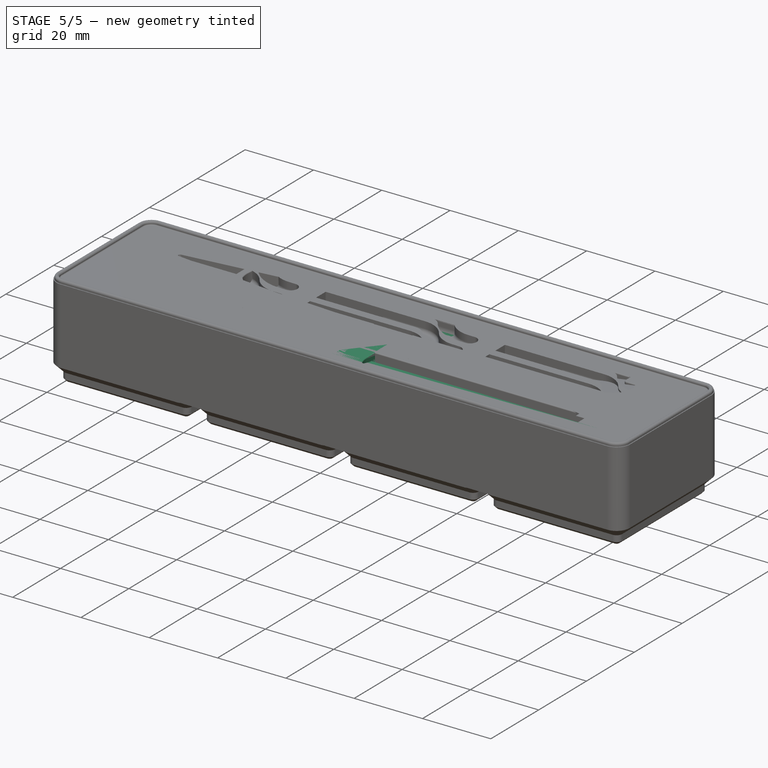
[diagram: stage 5 of 5 — iso view after this stage's code; geometry added in this stage tinted green]
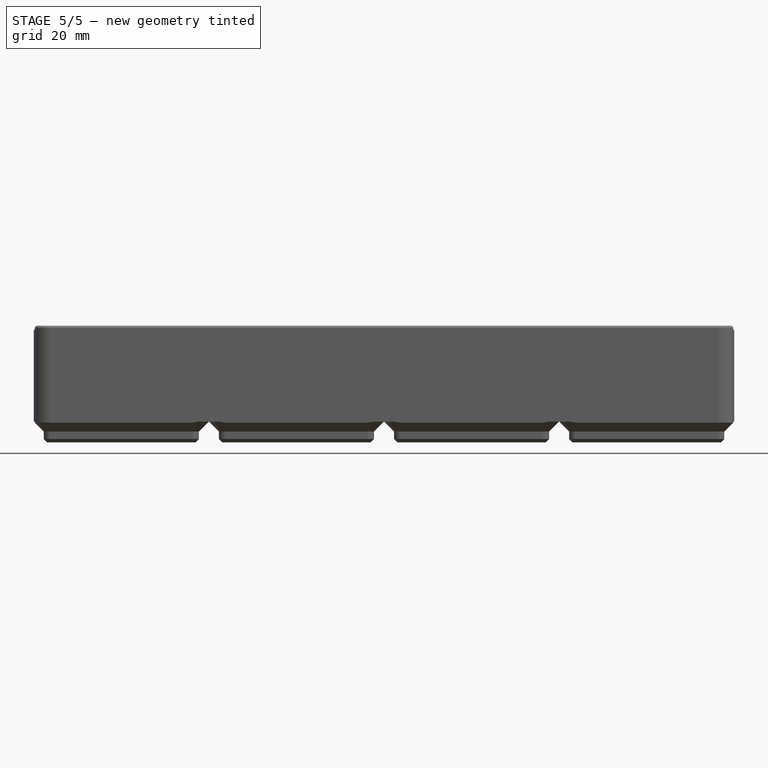
[diagram: stage 5 of 5 — front view after this stage's code; geometry added in this stage tinted green]
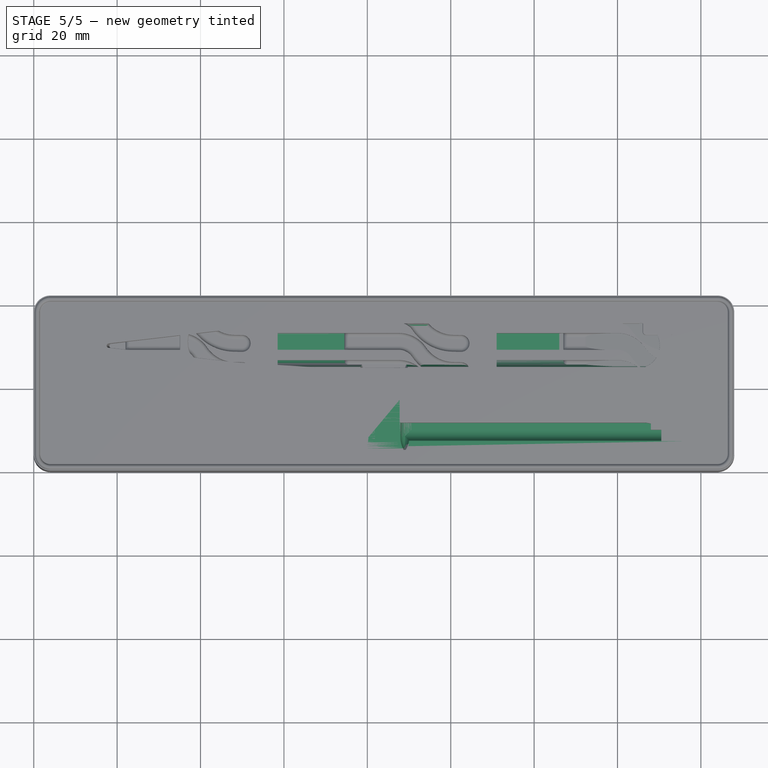
[diagram: stage 5 of 5 — top view after this stage's code; geometry added in this stage tinted green]
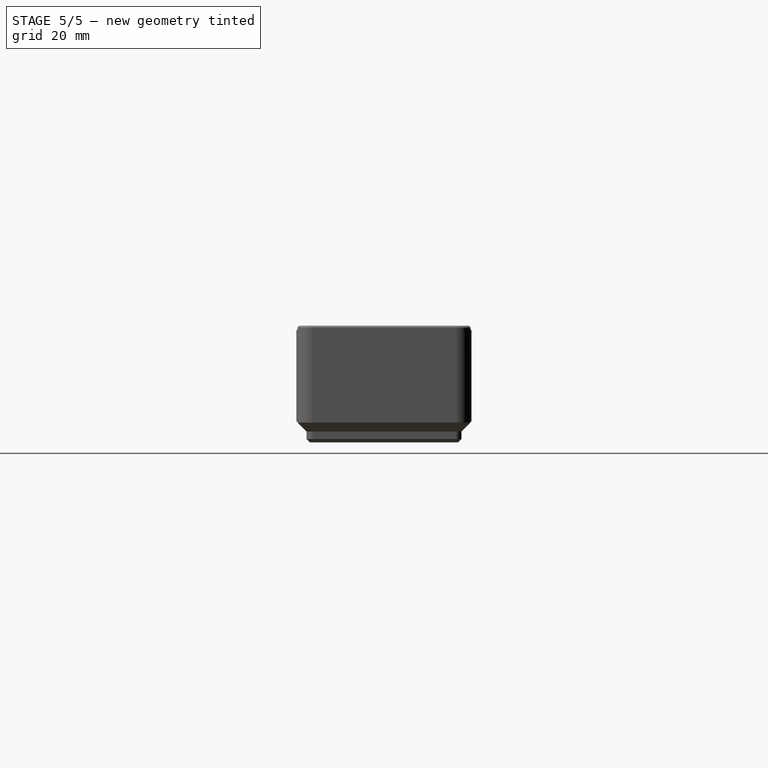
[diagram: stage 5 of 5 — right view after this stage's code; geometry added in this stage tinted green]
FEATURE [PartDesign::Body] Body001  label="Blank Storage"
  Group = -> [Sketch005,Sketch006,AdditivePipe,DatumPlane,Sketch007,Pocket,Sketch008,Pad001,Sketch009,Sketch010,Sketch011,Sketch012,SubtractiveLoft001,Sketch013,Hole,Sketch014,MultiTransform001,LinearPattern002,LinearPattern003,Pad,Binder]
  Origin = -> Origin001
  Tip = -> Pad
FEATURE [PartDesign::FeatureBase] Clone
  BaseFeature = -> Pad
  Placement = pos=(0,0,0) rot=(0.57735,0.57735,0.57735;2.0944rad)
FEATURE [PartDesign::Pocket] Pocket001
  BaseFeature = -> Clone
  Direction = (0,0,-1)
  Length = 5
  Length2 = 5
  Placement = pos=(0,0,0) rot=(0.57735,0.57735,0.57735;2.0944rad)
  Profile = -> Sketch
  ReferenceAxis = -> Sketch [N_Axis]
  Reversed = true
  Type = 1
FEATURE [PartDesign::Pocket] Pocket002
  BaseFeature = -> Pocket001
  Direction = (0,0,-1)
  Length = 5
  Length2 = 5
  Placement = pos=(0,0,0) rot=(0.57735,0.57735,0.57735;2.0944rad)
  Profile = -> Sketch015
  ReferenceAxis = -> Sketch015 [N_Axis]
  Refine = true
  Reversed = true
  Type = 1
FEATURE [PartDesign::FeatureBase] Clone002
  BaseFeature = -> Pad
  Placement = pos=(0,0,0) rot=(0.57735,0.57735,0.57735;2.0944rad)
FEATURE [Sketcher::SketchObject] Sketch021
  AttachmentOffset = pos=(0,0,23) rot=(0,0,1;0rad)
  FullyConstrained = true
  MapMode = 5
  Placement = pos=(0,0,23) rot=(0,0,1;0rad)
  Support = -> [XY_Plane003]
  sketch-geometry (20):
    g0: ArcOfCircle CenterX=12 CenterY=31 CenterZ=0 NormalX=0 NormalY=0 NormalZ=1 AngleXU=0 Radius=6 StartAngle=1.5708 EndAngle=4.71239
    g1: ArcOfCircle CenterX=156 CenterY=31 CenterZ=0 NormalX=0 NormalY=0 NormalZ=1 AngleXU=0 Radius=6 StartAngle=4.71239 EndAngle=7.85398
    g2: LineSegment StartX=12 StartY=25 StartZ=0 EndX=156 EndY=25 EndZ=0
    g3: LineSegment StartX=156 StartY=37 StartZ=0 EndX=12 EndY=37 EndZ=0
    g4: LineSegment StartX=12 StartY=2 StartZ=0 EndX=74 EndY=2 EndZ=0
    g5: LineSegment StartX=74 StartY=23.0001 StartZ=0 EndX=12 EndY=23.0001 EndZ=0
    g6: LineSegment StartX=94 StartY=2 StartZ=0 EndX=156 EndY=2 EndZ=0
    g7: LineSegment StartX=156 StartY=23 StartZ=0 EndX=94 EndY=23.0001 EndZ=0
    g8: LineSegment StartX=88 StartY=8 StartZ=0 EndX=88 EndY=17.0001 EndZ=0
    g9: LineSegment StartX=80 StartY=17.0001 StartZ=0 EndX=80 EndY=8 EndZ=0
    g10: ArcOfCircle CenterX=74 CenterY=17.0001 CenterZ=0 NormalX=0 NormalY=0 NormalZ=1 AngleXU=0 Radius=6 StartAngle=0 EndAngle=1.5708
    g11: ArcOfCircle CenterX=74 CenterY=8 CenterZ=0 NormalX=0 NormalY=0 NormalZ=1 AngleXU=0 Radius=6 StartAngle=4.71239 EndAngle=6.28319
    g12: ArcOfCircle CenterX=94 CenterY=8 CenterZ=0 NormalX=0 NormalY=0 NormalZ=1 AngleXU=0 Radius=6 StartAngle=3.14159 EndAngle=4.71239
    g13: ArcOfCircle CenterX=94 CenterY=17.0001 CenterZ=0 NormalX=0 NormalY=0 NormalZ=1 AngleXU=0 Radius=6 StartAngle=1.5708 EndAngle=3.14159
    g14: LineSegment StartX=162 StartY=17 StartZ=0 EndX=162 EndY=8 EndZ=0
    g15: LineSegment StartX=6 StartY=8 StartZ=0 EndX=6 EndY=17.0001 EndZ=0
    g16: ArcOfCircle CenterX=12 CenterY=17.0001 CenterZ=0 NormalX=0 NormalY=0 NormalZ=1 AngleXU=0 Radius=6 StartAngle=1.5708 EndAngle=3.14159
    g17: ArcOfCircle CenterX=12 CenterY=8 CenterZ=0 NormalX=0 NormalY=0 NormalZ=1 AngleXU=0 Radius=6 StartAngle=3.14159 EndAngle=4.71239
    g18: ArcOfCircle CenterX=156 CenterY=17 CenterZ=0 NormalX=0 NormalY=0 NormalZ=1 AngleXU=0 Radius=6 StartAngle=1e-16 EndAngle=1.5708
    g19: ArcOfCircle CenterX=156 CenterY=8 CenterZ=0 NormalX=0 NormalY=0 NormalZ=1 AngleXU=0 Radius=6 StartAngle=4.71239 EndAngle=6.28319
  constraints (50):
    c: Tangent(g0,g2) = -1.5708
    c: Tangent(g2,g1) = -1.5708
    c: Tangent(g1,g3) = -1.5708
    c: Tangent(g3,g0) = -1.5708
    c: Equal(g0,g1)
    c: Horizontal(g2)
    c: Radius(g1) = 6
    c: Horizontal(g4)
    c: DistanceX(g0,g1) = 144
    c: Horizontal(g6)
    c: Equal(g7,g5)
    c: DistanceY(g-1,g0) = 31
    c: DistanceX(g-1,g0) = 12
    c: Vertical(g8)
    c: Vertical(g9)
    c: Tangent(g5,g10) = -1.5708
    c: Tangent(g9,g10) = 1.5708
    c: Tangent(g4,g11) = -1.5708
    c: Tangent(g9,g11) = 1.5708
    c: Tangent(g6,g12) = -1.5708
    c: Tangent(g8,g12) = 1.5708
    c: Tangent(g7,g13) = -1.5708
    c: Tangent(g8,g13) = 1.5708
    c: Vertical(g14)
    c: Vertical(g15)
    c: Horizontal(g5)
    c: Tangent(g5,g16) = -1.5708
    c: Tangent(g15,g16) = 1.5708
    c: Tangent(g4,g17) = -1.5708
    c: Tangent(g15,g17) = 1.5708
    c: Tangent(g7,g18) = -1.5708
    c: Tangent(g14,g18) = 1.5708
    c: Tangent(g6,g19) = -1.5708
    c: Tangent(g14,g19) = 1.5708
    c: Equal(g19,g18)
    c: Equal(g18,g13)
    c: Equal(g13,g12)
    c: Equal(g12,g11)
    c: Equal(g11,g10)
    c: Equal(g10,g16)
    c: Equal(g16,g17)
    c: DistanceX(g-1,g15) = 6
    c: DistanceX(g15,g9) = 74
    c: Equal(g4,g6)
    c: Horizontal(g6,g4)
    c: Horizontal(g7,g5)
    c: DistanceY(g6,g7) = 21
    c: DistanceY(g-1,g4) = 2
    c: Radius(g16) = 6
    c: DistanceX(g15,g14) = 156
FEATURE [PartDesign::Pocket] Pocket007
  BaseFeature = -> Clone002
  Direction = (0,0,-1)
  Length = 5
  Length2 = 5
  Placement = pos=(0,0,0) rot=(0.57735,0.57735,0.57735;2.0944rad)
  Profile = -> Sketch021
  ReferenceAxis = -> Sketch021 [N_Axis]
  Reversed = true
  Type = 1
FEATURE [Sketcher::SketchObject] Sketch022
  AttachmentOffset = pos=(0,0,23) rot=(0,0,1;0rad)
  ExternalGeometry = -> [Sketch021]
  FullyConstrained = true
  MapMode = 5
  Placement = pos=(0,0,23) rot=(0,0,1;0rad)
  Support = -> [XY_Plane003]
  sketch-geometry (5):
    g0: ArcOfCircle CenterX=84 CenterY=34 CenterZ=0 NormalX=0 NormalY=0 NormalZ=1 AngleXU=0 Radius=6 StartAngle=6.495e-13 EndAngle=3.14159
    g1: ArcOfCircle CenterX=84 CenterY=27 CenterZ=0 NormalX=0 NormalY=0 NormalZ=1 AngleXU=0 Radius=6 StartAngle=3.14159 EndAngle=6.28319
    g2: LineSegment StartX=78 StartY=34 StartZ=0 EndX=78 EndY=27 EndZ=0
    g3: LineSegment StartX=90 StartY=27 StartZ=0 EndX=90 EndY=34 EndZ=0
    g4: LineSegment StartX=84 StartY=27 StartZ=0 EndX=84 EndY=37 EndZ=0
  constraints (12):
    c: Tangent(g0,g2) = -1.5708
    c: Tangent(g2,g1) = -1.5708
    c: Tangent(g1,g3) = -1.5708
    c: Tangent(g3,g0) = -1.5708
    c: Equal(g0,g1)
    c: Vertical(g2)
    c: DistanceY(g1,g0) = 7
    c: Radius(g1) = 6
    c: DistanceY(g-1,g1) = 27
    c: Coincident(g4,g1)
    c: Vertical(g4)
    c: Symmetric(g-3,g-3,g4)
FEATURE [PartDesign::Pocket] Pocket008
  BaseFeature = -> Pocket007
  Direction = (0,0,-1)
  Length = 5
  Length2 = 5
  Placement = pos=(0,0,0) rot=(0.57735,0.57735,0.57735;2.0944rad)
  Profile = -> Sketch022
  ReferenceAxis = -> Sketch022 [N_Axis]
  Refine = true
  Reversed = true
  Type = 1
FEATURE [PartDesign::Fillet] Fillet004
  Base = -> Pocket008 [Face202,Face204,Face203]
  BaseFeature = -> Pocket008
  Placement = pos=(0,0,0) rot=(0.57735,0.57735,0.57735;2.0944rad)
  Radius = 2.5
  SupportTransform = false
  UseAllEdges = false
FEATURE [PartDesign::Fillet] Fillet006
  Base = -> Fillet004 [Face4]
  BaseFeature = -> Fillet004
  Placement = pos=(0,0,0) rot=(0.57735,0.57735,0.57735;2.0944rad)
  Radius = 0.25
  SupportTransform = false
  UseAllEdges = false
FEATURE [PartDesign::Body] Body003  label="Pen holder single"
  BaseFeature = -> Pad
  Group = -> [Clone002,Sketch022,Sketch021,Pocket007,Pocket008,Fillet004,Fillet006]
  Origin = -> Origin003
  Tip = -> Fillet006
FEATURE [PartDesign::Fillet] Fillet
  Base = -> Pocket002 [Face194]
  BaseFeature = -> Pocket002
  Placement = pos=(0,0,0) rot=(0.57735,0.57735,0.57735;2.0944rad)
  Radius = 2.5
  SupportTransform = false
  UseAllEdges = false
FEATURE [PartDesign::Fillet] Fillet007
  Base = -> Fillet [Face4]
  BaseFeature = -> Fillet
  Placement = pos=(0,0,0) rot=(0.57735,0.57735,0.57735;2.0944rad)
  Radius = 0.25
  SupportTransform = false
  UseAllEdges = false
FEATURE [PartDesign::Fillet] Fillet009
  Base = -> Fillet008 [Face4]
  BaseFeature = -> Fillet008
  Placement = pos=(0,0,0) rot=(0.57735,0.57735,0.57735;2.0944rad)
  Radius = 0.25
  SupportTransform = false
  UseAllEdges = false
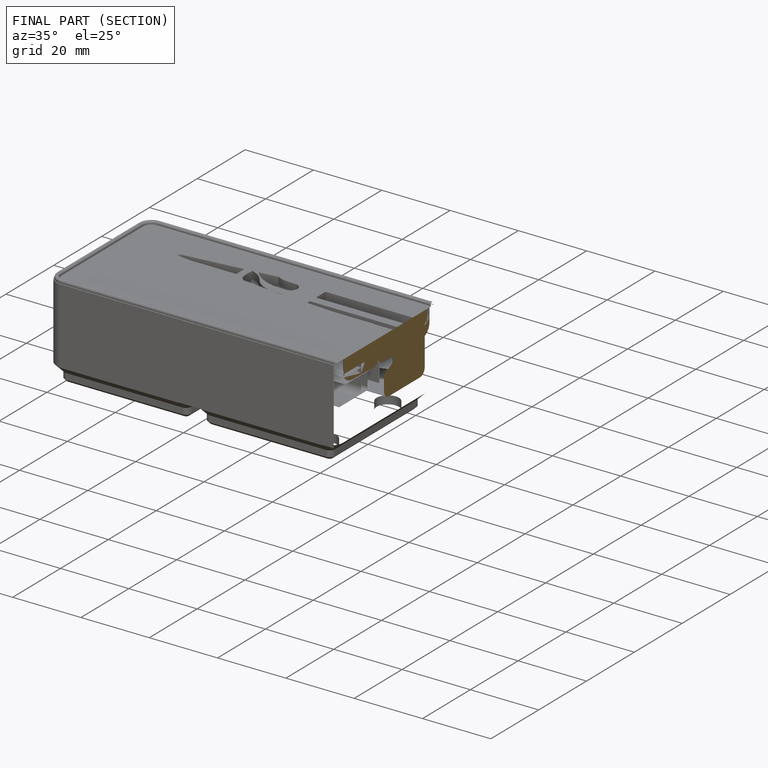
[diagram: finished part — half-section view (interior)]
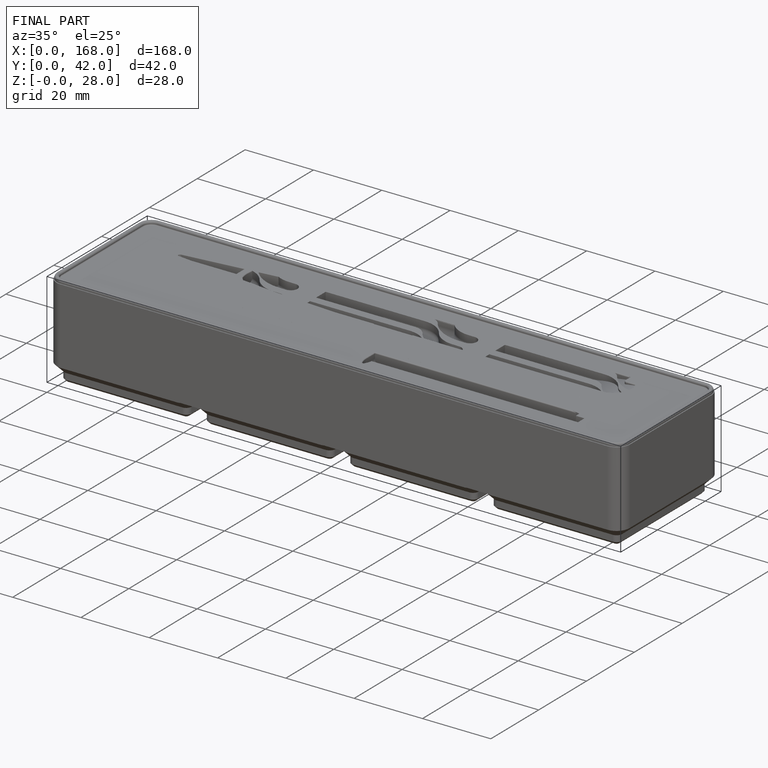
[diagram: finished part — iso view with bounding-box wireframe]
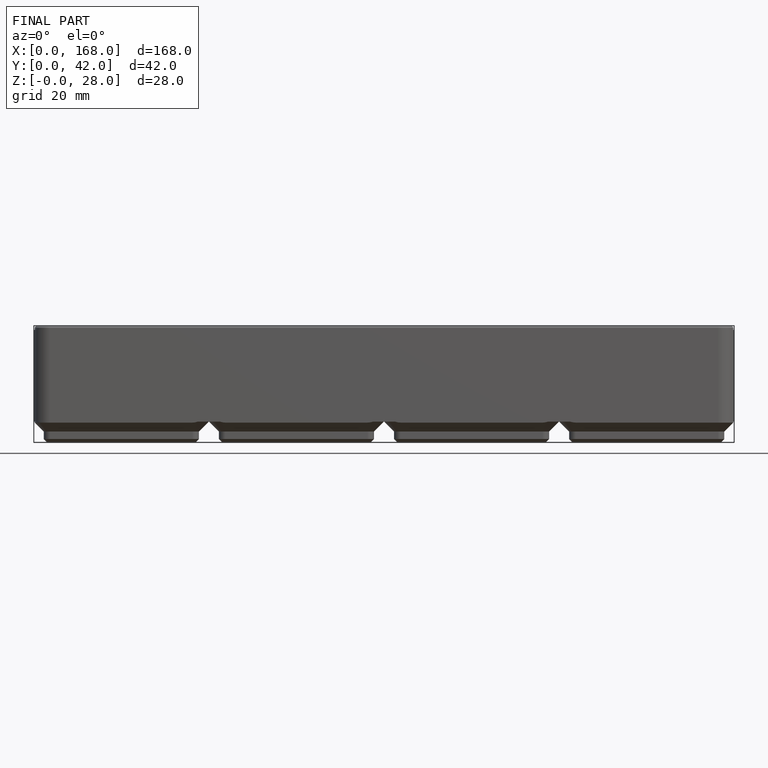
[diagram: finished part — front view with bounding-box wireframe]
